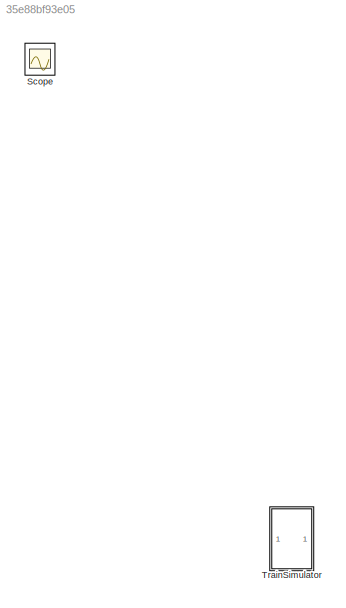
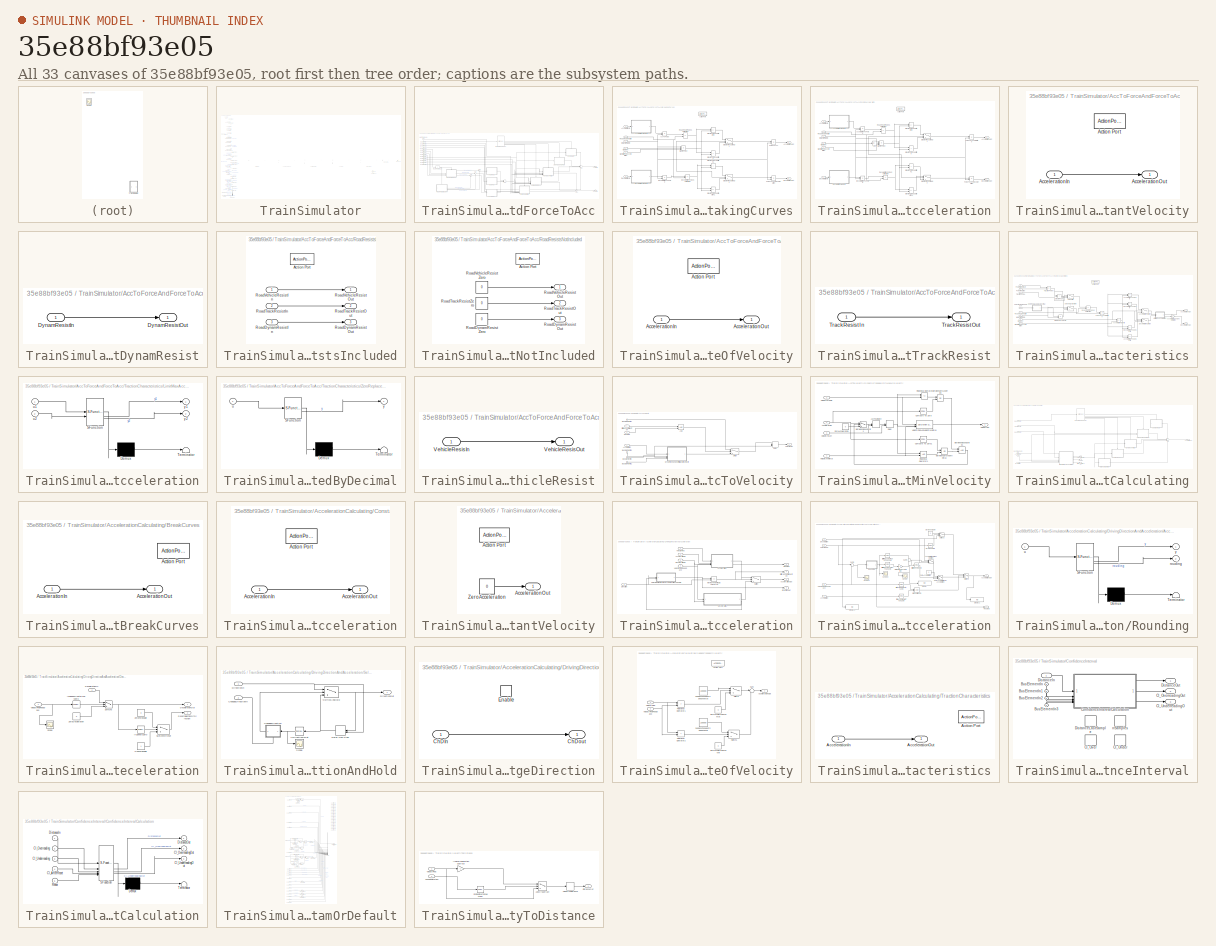
[diagram: thumbnail index - all 33 canvases of the model, root first then tree order]
MODEL slx_35e88bf93e05
KIND model
BLOCK [Scope] Scope
  Floating = off
  IOType = viewer
  NumInputPorts = 1
  ScopeSpecificationString = Simulink.scopes.TimeScopeBlockCfg('CurrentConfiguration', extmgr.ConfigurationSet(extmgr.Configuration('Core','General UI',true),extmgr.Configuration('Core','Source UI',true),extmgr.Configuration('Sources','WiredSimulink',true,'DataLoggingVariableName','ScopeData1'),extmgr.Configuration('Visuals','Time Domain',true,'SerializedDisplays',{struct('MinYLimReal','-1.00000','MaxYLimReal','1.00000','YLab...<+1394ch>
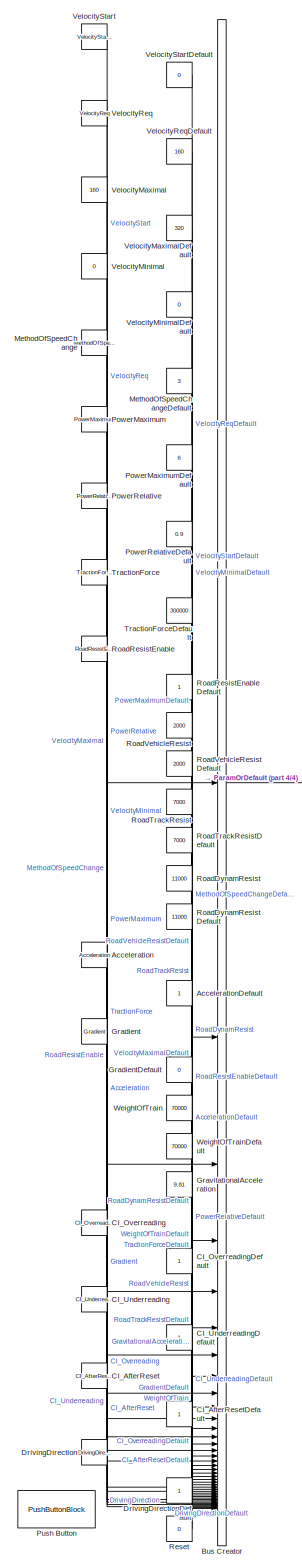
[diagram: TrainSimulator - part 1/4, left side, full height]
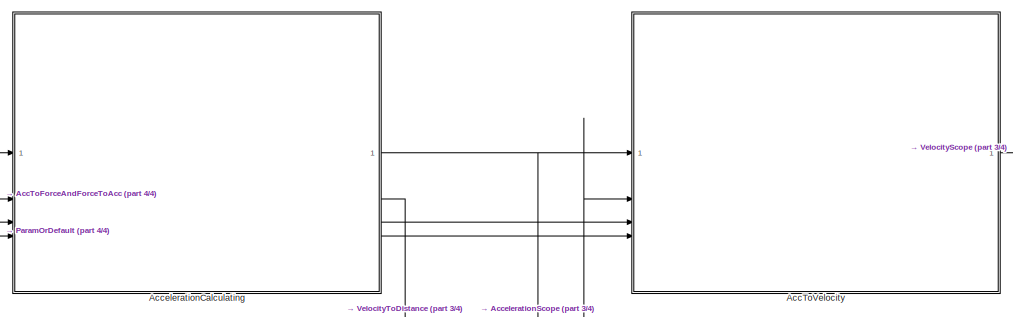
[diagram: TrainSimulator - part 2/4, central region]
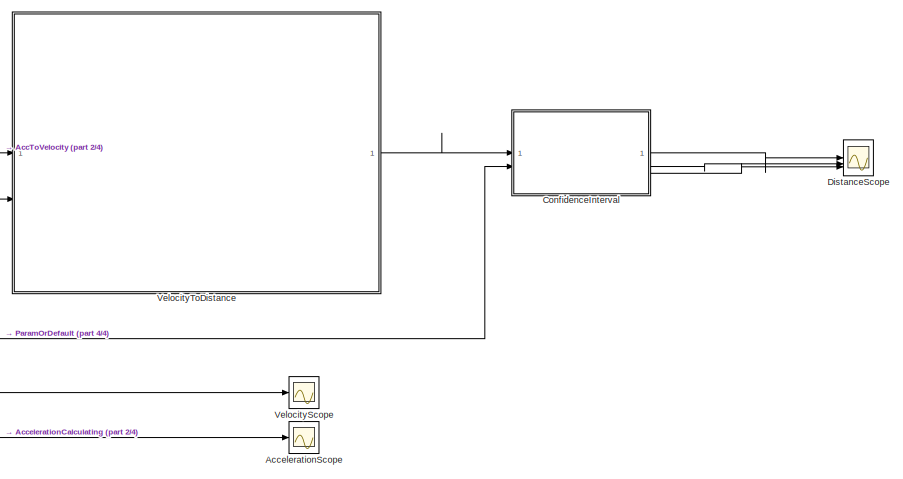
[diagram: TrainSimulator - part 3/4, middle right region]
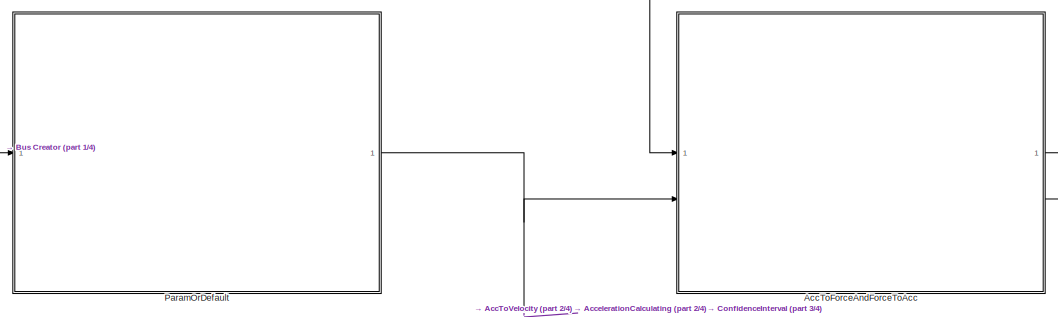
[diagram: TrainSimulator - part 4/4, middle left region]
BLOCK [SubSystem] TrainSimulator
BLOCK [SubSystem] TrainSimulator/AccToForceAndForceToAcc
BLOCK [Outport] TrainSimulator/AccToForceAndForceToAcc/Acceleration
  OutDataTypeStr = double
BLOCK [Sum] TrainSimulator/AccToForceAndForceToAcc/Add
  AccumDataTypeStr = double
  Inputs = +++++
  OutDataTypeStr = double
BLOCK [Sum] TrainSimulator/AccToForceAndForceToAcc/Add1
  AccumDataTypeStr = double
  IconShape = rectangular
  Inputs = +++
  OutDataTypeStr = double
  OutMin = 0
BLOCK [Sum] TrainSimulator/AccToForceAndForceToAcc/Add2
  AccumDataTypeStr = double
  Inputs = +++
  OutDataTypeStr = double
BLOCK [SubSystem] TrainSimulator/AccToForceAndForceToAcc/BreakingCurves
BLOCK [Product] TrainSimulator/AccToForceAndForceToAcc/BreakingCurves/AccToForce
  OutDataTypeStr = double
BLOCK [Inport] TrainSimulator/AccToForceAndForceToAcc/BreakingCurves/AccelerationIn
  OutDataTypeStr = double
BLOCK [SubSystem] TrainSimulator/AccToForceAndForceToAcc/BreakingCurves/AccelerationMaking
  ReferencedSubsystem = AccelerationMaking
BLOCK [Outport] TrainSimulator/AccToForceAndForceToAcc/BreakingCurves/AccelerationOut
  InitialOutput = 0
  OutDataTypeStr = double
  OutputWhenDisabled = reset
BLOCK [ActionPort] TrainSimulator/AccToForceAndForceToAcc/BreakingCurves/Action Port
  ActionPortLabel = case [ 4 ]:
BLOCK [Sum] TrainSimulator/AccToForceAndForceToAcc/BreakingCurves/DecelerationForceSubtraction
  AccumDataTypeStr = double
  IconShape = rectangular
  Inputs = +-
  OutDataTypeStr = double
  RndMeth = Round
BLOCK [Inport] TrainSimulator/AccToForceAndForceToAcc/BreakingCurves/DecelerationIn
  OutDataTypeStr = double
  Port = 4
BLOCK [SubSystem] TrainSimulator/AccToForceAndForceToAcc/BreakingCurves/DecelerationMaking
  ReferencedSubsystem = DecelerationMaking
BLOCK [Outport] TrainSimulator/AccToForceAndForceToAcc/BreakingCurves/DecelerationOut
  InitialOutput = 0
  OutDataTypeStr = double
  OutputWhenDisabled = reset
  Port = 2
BLOCK [Product] TrainSimulator/AccToForceAndForceToAcc/BreakingCurves/DecelerationToForce
  OutDataTypeStr = double
BLOCK [Product] TrainSimulator/AccToForceAndForceToAcc/BreakingCurves/ForceToAcc
  Inputs = */
  OutDataTypeStr = double
  RndMeth = Round
BLOCK [Product] TrainSimulator/AccToForceAndForceToAcc/BreakingCurves/ForceToAccDeceleration
  Inputs = */
  OutDataTypeStr = double
  RndMeth = Round
BLOCK [Inport] TrainSimulator/AccToForceAndForceToAcc/BreakingCurves/Gradient
  Port = 5
BLOCK [Switch] TrainSimulator/AccToForceAndForceToAcc/BreakingCurves/GradientPosOrNeg1
  Criteria = u2 > Threshold
  InputSameDT = off
  OutDataTypeStr = double
  SaturateOnIntegerOverflow = off
BLOCK [Switch] TrainSimulator/AccToForceAndForceToAcc/BreakingCurves/GradientPosOrNeg2
  Criteria = u2 > Threshold
  InputSameDT = off
  OutDataTypeStr = double
  SaturateOnIntegerOverflow = off
BLOCK [Inport] TrainSimulator/AccToForceAndForceToAcc/BreakingCurves/GravitationalAcceleration
  Port = 6
BLOCK [Product] TrainSimulator/AccToForceAndForceToAcc/BreakingCurves/GravityForce
  Inputs = 3
  OutDataTypeStr = double
BLOCK [Sum] TrainSimulator/AccToForceAndForceToAcc/BreakingCurves/GravityForceAddition
  AccumDataTypeStr = double
  IconShape = rectangular
  OutDataTypeStr = double
  RndMeth = Round
BLOCK [Sum] TrainSimulator/AccToForceAndForceToAcc/BreakingCurves/GravityForceAddition1
  AccumDataTypeStr = double
  IconShape = rectangular
  OutDataTypeStr = double
  RndMeth = Round
BLOCK [Sum] TrainSimulator/AccToForceAndForceToAcc/BreakingCurves/GravityForceSubtraction
  AccumDataTypeStr = double
  IconShape = rectangular
  Inputs = +-
  OutDataTypeStr = double
  RndMeth = Round
BLOCK [Sum] TrainSimulator/AccToForceAndForceToAcc/BreakingCurves/GravityForceSubtraction1
  AccumDataTypeStr = double
  IconShape = rectangular
  Inputs = +-
  OutDataTypeStr = double
  RndMeth = Round
BLOCK [Sum] TrainSimulator/AccToForceAndForceToAcc/BreakingCurves/RoadResistForceSubtraction
  AccumDataTypeStr = double
  IconShape = rectangular
  Inputs = +-
  OutDataTypeStr = double
  RndMeth = Round
BLOCK [Inport] TrainSimulator/AccToForceAndForceToAcc/BreakingCurves/RoadResistTotalIn
  OutDataTypeStr = double
  Port = 2
BLOCK [Inport] TrainSimulator/AccToForceAndForceToAcc/BreakingCurves/WeightOfTrainIn
  OutDataTypeStr = double
  Port = 3
BLOCK [Inport] TrainSimulator/AccToForceAndForceToAcc/BusElementIn
  Port = 2
BLOCK [Inport] TrainSimulator/AccToForceAndForceToAcc/BusElementIn1
  Port = 2
BLOCK [Inport] TrainSimulator/AccToForceAndForceToAcc/BusElementIn10
  Port = 2
BLOCK [Inport] TrainSimulator/AccToForceAndForceToAcc/BusElementIn11
  Port = 2
BLOCK [Inport] TrainSimulator/AccToForceAndForceToAcc/BusElementIn2
  Port = 2
BLOCK [Inport] TrainSimulator/AccToForceAndForceToAcc/BusElementIn3
  Port = 2
BLOCK [Inport] TrainSimulator/AccToForceAndForceToAcc/BusElementIn4
  Port = 2
BLOCK [Inport] TrainSimulator/AccToForceAndForceToAcc/BusElementIn5
  Port = 2
BLOCK [Inport] TrainSimulator/AccToForceAndForceToAcc/BusElementIn6
  Port = 2
BLOCK [Inport] TrainSimulator/AccToForceAndForceToAcc/BusElementIn7
  Port = 2
BLOCK [Inport] TrainSimulator/AccToForceAndForceToAcc/BusElementIn8
  Port = 2
BLOCK [Inport] TrainSimulator/AccToForceAndForceToAcc/BusElementIn9
  Port = 2
BLOCK [SubSystem] TrainSimulator/AccToForceAndForceToAcc/ConstantAcceleration
BLOCK [Abs] TrainSimulator/AccToForceAndForceToAcc/ConstantAcceleration/Abs
  OutDataTypeStr = double
  SaturateOnIntegerOverflow = off
BLOCK [Inport] TrainSimulator/AccToForceAndForceToAcc/ConstantAcceleration/AccelerationIn
  OutDataTypeStr = double
BLOCK [SubSystem] TrainSimulator/AccToForceAndForceToAcc/ConstantAcceleration/AccelerationMaking
  ReferencedSubsystem = AccelerationMaking
BLOCK [Outport] TrainSimulator/AccToForceAndForceToAcc/ConstantAcceleration/AccelerationOut
  InitialOutput = 0
  OutDataTypeStr = double
  OutputWhenDisabled = reset
BLOCK [Product] TrainSimulator/AccToForceAndForceToAcc/ConstantAcceleration/AccelerationToForce
  OutDataTypeStr = double
BLOCK [ActionPort] TrainSimulator/AccToForceAndForceToAcc/ConstantAcceleration/Action Port
  ActionPortLabel = case [ 3 ]:
BLOCK [Sum] TrainSimulator/AccToForceAndForceToAcc/ConstantAcceleration/DecelerationForceSubtraction
  AccumDataTypeStr = double
  IconShape = rectangular
  Inputs = +-
  OutDataTypeStr = double
  RndMeth = Round
BLOCK [Inport] TrainSimulator/AccToForceAndForceToAcc/ConstantAcceleration/DecelerationIn
  OutDataTypeStr = double
  Port = 4
BLOCK [SubSystem] TrainSimulator/AccToForceAndForceToAcc/ConstantAcceleration/DecelerationMaking
  ReferencedSubsystem = DecelerationMaking
BLOCK [Outport] TrainSimulator/AccToForceAndForceToAcc/ConstantAcceleration/DecelerationOut
  InitialOutput = 0
  OutDataTypeStr = double
  OutputWhenDisabled = reset
  Port = 2
BLOCK [Product] TrainSimulator/AccToForceAndForceToAcc/ConstantAcceleration/DecelerationToForce
  OutDataTypeStr = double
BLOCK [Product] TrainSimulator/AccToForceAndForceToAcc/ConstantAcceleration/ForceToAccDeceleration
  Inputs = */
  OutDataTypeStr = double
  RndMeth = Round
BLOCK [Product] TrainSimulator/AccToForceAndForceToAcc/ConstantAcceleration/ForceToAcceleratino
  Inputs = */
  OutDataTypeStr = double
  RndMeth = Round
BLOCK [Inport] TrainSimulator/AccToForceAndForceToAcc/ConstantAcceleration/Gradient
  Port = 5
BLOCK [Switch] TrainSimulator/AccToForceAndForceToAcc/ConstantAcceleration/GradientPosOrNeg1
  Criteria = u2 > Threshold
  InputSameDT = off
  OutDataTypeStr = double
  SaturateOnIntegerOverflow = off
BLOCK [Switch] TrainSimulator/AccToForceAndForceToAcc/ConstantAcceleration/GradientPosOrNeg2
  Criteria = u2 > Threshold
  InputSameDT = off
  OutDataTypeStr = double
  SaturateOnIntegerOverflow = off
BLOCK [Inport] TrainSimulator/AccToForceAndForceToAcc/ConstantAcceleration/GravitationalAcceleration
  Port = 6
BLOCK [Product] TrainSimulator/AccToForceAndForceToAcc/ConstantAcceleration/GravityForce
  Inputs = 3
  OutDataTypeStr = double
BLOCK [Sum] TrainSimulator/AccToForceAndForceToAcc/ConstantAcceleration/GravityForceAddition
  AccumDataTypeStr = double
  IconShape = rectangular
  OutDataTypeStr = double
  RndMeth = Round
BLOCK [Sum] TrainSimulator/AccToForceAndForceToAcc/ConstantAcceleration/GravityForceAddition1
  AccumDataTypeStr = double
  IconShape = rectangular
  OutDataTypeStr = double
  RndMeth = Round
BLOCK [Sum] TrainSimulator/AccToForceAndForceToAcc/ConstantAcceleration/GravityForceSubtraction
  AccumDataTypeStr = double
  IconShape = rectangular
  Inputs = +-
  OutDataTypeStr = double
  RndMeth = Round
BLOCK [Sum] TrainSimulator/AccToForceAndForceToAcc/ConstantAcceleration/GravityForceSubtraction1
  AccumDataTypeStr = double
  IconShape = rectangular
  Inputs = +-
  OutDataTypeStr = double
  RndMeth = Round
BLOCK [Sum] TrainSimulator/AccToForceAndForceToAcc/ConstantAcceleration/RoadResistForceSubtraction
  AccumDataTypeStr = double
  IconShape = rectangular
  Inputs = +-
  OutDataTypeStr = double
  RndMeth = Round
BLOCK [Inport] TrainSimulator/AccToForceAndForceToAcc/ConstantAcceleration/RoadResistTotalIn
  OutDataTypeStr = double
  Port = 2
BLOCK [Inport] TrainSimulator/AccToForceAndForceToAcc/ConstantAcceleration/WeightOfTrainIn
  OutDataTypeStr = double
  Port = 3
BLOCK [SubSystem] TrainSimulator/AccToForceAndForceToAcc/ConstantVelocity
BLOCK [Inport] TrainSimulator/AccToForceAndForceToAcc/ConstantVelocity/AccelerationIn
  OutDataTypeStr = double
BLOCK [Outport] TrainSimulator/AccToForceAndForceToAcc/ConstantVelocity/AccelerationOut
  InitialOutput = 0
  OutDataTypeStr = double
  OutputWhenDisabled = reset
BLOCK [ActionPort] TrainSimulator/AccToForceAndForceToAcc/ConstantVelocity/Action Port
  ActionPortLabel = case [ 1 ]:
BLOCK [Outport] TrainSimulator/AccToForceAndForceToAcc/Deceleration
  OutDataTypeStr = double
  Port = 2
BLOCK [SubSystem] TrainSimulator/AccToForceAndForceToAcc/DynamResist
BLOCK [Inport] TrainSimulator/AccToForceAndForceToAcc/DynamResist/DynamResistIn
  OutDataTypeStr = double
  OutMin = 0
BLOCK [Outport] TrainSimulator/AccToForceAndForceToAcc/DynamResist/DynamResistOut
  OutDataTypeStr = double
  OutMin = 0
BLOCK [If] TrainSimulator/AccToForceAndForceToAcc/IfRoadResistsEnable
  IfExpression = u1 == 1
BLOCK [SwitchCase] TrainSimulator/AccToForceAndForceToAcc/MethodOfSpeedChange
  CaseConditions = {1,2,3,4,5}
  ShowDefaultCase = off
BLOCK [SubSystem] TrainSimulator/AccToForceAndForceToAcc/RoadResistsIncluded
BLOCK [ActionPort] TrainSimulator/AccToForceAndForceToAcc/RoadResistsIncluded/Action Port
  ActionPortLabel = if(u1 == 1)
BLOCK [Inport] TrainSimulator/AccToForceAndForceToAcc/RoadResistsIncluded/RoadDynamResistIn
  OutDataTypeStr = double
  OutMin = 0
  Port = 3
BLOCK [Outport] TrainSimulator/AccToForceAndForceToAcc/RoadResistsIncluded/RoadDynamResistOut
  InitialOutput = 0
  OutDataTypeStr = double
  OutMin = 0
  OutputWhenDisabled = reset
  Port = 3
BLOCK [Inport] TrainSimulator/AccToForceAndForceToAcc/RoadResistsIncluded/RoadTrackResistIn
  OutDataTypeStr = double
  OutMin = 0
  Port = 2
BLOCK [Outport] TrainSimulator/AccToForceAndForceToAcc/RoadResistsIncluded/RoadTrackResistOut
  InitialOutput = 0
  OutDataTypeStr = double
  OutMin = 0
  OutputWhenDisabled = reset
  Port = 2
BLOCK [Inport] TrainSimulator/AccToForceAndForceToAcc/RoadResistsIncluded/RoadVehicleResistIn
  OutDataTypeStr = double
  OutMin = 0
BLOCK [Outport] TrainSimulator/AccToForceAndForceToAcc/RoadResistsIncluded/RoadVehicleResistOut
  InitialOutput = 0
  OutDataTypeStr = double
  OutMin = 0
  OutputWhenDisabled = reset
BLOCK [SubSystem] TrainSimulator/AccToForceAndForceToAcc/RoadResistsNotIncluded
BLOCK [ActionPort] TrainSimulator/AccToForceAndForceToAcc/RoadResistsNotIncluded/Action Port
  ActionPortLabel = else
BLOCK [Outport] TrainSimulator/AccToForceAndForceToAcc/RoadResistsNotIncluded/RoadDynamResistOut
  InitialOutput = 0
  OutDataTypeStr = uint8
  OutMax = 0
  OutMin = 0
  OutputWhenDisabled = reset
  Port = 3
BLOCK [Constant] TrainSimulator/AccToForceAndForceToAcc/RoadResistsNotIncluded/RoadDynamResistZero
  OutDataTypeStr = uint8
  OutMax = 0
  OutMin = 0
  Value = 0
BLOCK [Outport] TrainSimulator/AccToForceAndForceToAcc/RoadResistsNotIncluded/RoadTrackResistOut
  InitialOutput = 0
  OutDataTypeStr = uint8
  OutMax = 0
  OutMin = 0
  OutputWhenDisabled = reset
  Port = 2
BLOCK [Constant] TrainSimulator/AccToForceAndForceToAcc/RoadResistsNotIncluded/RoadTrackResistZero
  OutDataTypeStr = uint8
  OutMax = 0
  OutMin = 0
  Value = 0
BLOCK [Outport] TrainSimulator/AccToForceAndForceToAcc/RoadResistsNotIncluded/RoadVehicleResistOut
  InitialOutput = 0
  OutDataTypeStr = uint8
  OutMax = 0
  OutMin = 0
  OutputWhenDisabled = reset
BLOCK [Constant] TrainSimulator/AccToForceAndForceToAcc/RoadResistsNotIncluded/RoadVehicleResistZero
  OutDataTypeStr = uint8
  OutMax = 0
  OutMin = 0
  Value = 0
BLOCK [SubSystem] TrainSimulator/AccToForceAndForceToAcc/SuddenChangeOfVelocity
BLOCK [Inport] TrainSimulator/AccToForceAndForceToAcc/SuddenChangeOfVelocity/AccelerationIn
  OutDataTypeStr = double
BLOCK [Outport] TrainSimulator/AccToForceAndForceToAcc/SuddenChangeOfVelocity/AccelerationOut
  InitialOutput = 0
  OutDataTypeStr = double
  OutputWhenDisabled = reset
BLOCK [ActionPort] TrainSimulator/AccToForceAndForceToAcc/SuddenChangeOfVelocity/Action Port
  ActionPortLabel = case [ 2 ]:
BLOCK [Sum] TrainSimulator/AccToForceAndForceToAcc/Sum
  AccumDataTypeStr = double
  Inputs = |++
  OutMin = 0
BLOCK [Sum] TrainSimulator/AccToForceAndForceToAcc/Sum1
  AccumDataTypeStr = double
  Inputs = |++
  OutMin = 0
BLOCK [Sum] TrainSimulator/AccToForceAndForceToAcc/Sum2
  AccumDataTypeStr = double
  Inputs = |++
  OutMin = 0
BLOCK [SubSystem] TrainSimulator/AccToForceAndForceToAcc/TrackResist
BLOCK [Inport] TrainSimulator/AccToForceAndForceToAcc/TrackResist/TrackResistIn
  OutDataTypeStr = double
  OutMin = 0
BLOCK [Outport] TrainSimulator/AccToForceAndForceToAcc/TrackResist/TrackResistOut
  OutDataTypeStr = double
  OutMin = 0
BLOCK [SubSystem] TrainSimulator/AccToForceAndForceToAcc/TractionCharacteristics
BLOCK [Product] TrainSimulator/AccToForceAndForceToAcc/TractionCharacteristics/AccelerationGravity
  OutDataTypeStr = double
BLOCK [Outport] TrainSimulator/AccToForceAndForceToAcc/TractionCharacteristics/AccelerationOut
  InitialOutput = 0
  OutDataTypeStr = double
  OutputWhenDisabled = reset
BLOCK [Switch] TrainSimulator/AccToForceAndForceToAcc/TractionCharacteristics/AccelerationSwitch
  Criteria = u2 > Threshold
  InputSameDT = off
  SaturateOnIntegerOverflow = off
BLOCK [Gain] TrainSimulator/AccToForceAndForceToAcc/TractionCharacteristics/AccelerationToDeceleration
  Gain = -1
  ParamDataTypeStr = double
BLOCK [Sum] TrainSimulator/AccToForceAndForceToAcc/TractionCharacteristics/AccelerationToDownHill
  IconShape = rectangular
  Inputs = +-
BLOCK [Sum] TrainSimulator/AccToForceAndForceToAcc/TractionCharacteristics/AccelerationToUpHill
  IconShape = rectangular
  Inputs = +-
BLOCK [ActionPort] TrainSimulator/AccToForceAndForceToAcc/TractionCharacteristics/Action Port
  ActionPortLabel = case [ 5 ]:
BLOCK [Outport] TrainSimulator/AccToForceAndForceToAcc/TractionCharacteristics/DecelerationOut
  InitialOutput = 0
  OutDataTypeStr = double
  OutputWhenDisabled = reset
  Port = 2
BLOCK [Switch] TrainSimulator/AccToForceAndForceToAcc/TractionCharacteristics/DecelerationSwitch
  Criteria = u2 > Threshold
  InputSameDT = off
  SaturateOnIntegerOverflow = off
BLOCK [Sum] TrainSimulator/AccToForceAndForceToAcc/TractionCharacteristics/DecelerationToDownHill
  IconShape = rectangular
BLOCK [Sum] TrainSimulator/AccToForceAndForceToAcc/TractionCharacteristics/DecelerationToUpHill
  IconShape = rectangular
BLOCK [Product] TrainSimulator/AccToForceAndForceToAcc/TractionCharacteristics/DivisionByVelocity
BLOCK [Product] TrainSimulator/AccToForceAndForceToAcc/TractionCharacteristics/ForceToAcceleration
  Inputs = */
  OutDataTypeStr = double
BLOCK [Inport] TrainSimulator/AccToForceAndForceToAcc/TractionCharacteristics/Gradient
  Port = 6
BLOCK [Inport] TrainSimulator/AccToForceAndForceToAcc/TractionCharacteristics/GravitationalAcceleration
  Port = 7
BLOCK [RelationalOperator] TrainSimulator/AccToForceAndForceToAcc/TractionCharacteristics/GreaterThan
  InputSameDT = off
  Operator = >
  OutDataTypeStr = boolean
  RndMeth = Simplest
BLOCK [SubSystem] TrainSimulator/AccToForceAndForceToAcc/TractionCharacteristics/LimitMaxAcceleration
  ErrorFcn = Stateflow.Translate.translate
  PermitHierarchicalResolution = ExplicitOnly
  SFBlockType = MATLAB Function
  TreatAsAtomicUnit = on
BLOCK [Demux] TrainSimulator/AccToForceAndForceToAcc/TractionCharacteristics/LimitMaxAcceleration/ Demux 
  Outputs = 1
BLOCK [S-Function] TrainSimulator/AccToForceAndForceToAcc/TractionCharacteristics/LimitMaxAcceleration/ SFunction 
  EnableBusSupport = on
  FunctionName = sf_sfun
  PortCounts = [2 3]
  SFcnIsStateOwnerBlock = off
  SFunctionDeploymentMode = off
  Tag = Stateflow S-Function 3
BLOCK [Terminator] TrainSimulator/AccToForceAndForceToAcc/TractionCharacteristics/LimitMaxAcceleration/ Terminator 
BLOCK [Inport] TrainSimulator/AccToForceAndForceToAcc/TractionCharacteristics/LimitMaxAcceleration/u1
BLOCK [Inport] TrainSimulator/AccToForceAndForceToAcc/TractionCharacteristics/LimitMaxAcceleration/u2
  Port = 2
BLOCK [Outport] TrainSimulator/AccToForceAndForceToAcc/TractionCharacteristics/LimitMaxAcceleration/y1
BLOCK [Outport] TrainSimulator/AccToForceAndForceToAcc/TractionCharacteristics/LimitMaxAcceleration/y2
  Port = 2
BLOCK [Inport] TrainSimulator/AccToForceAndForceToAcc/TractionCharacteristics/PowerMaximum
  OutDataTypeStr = double
BLOCK [Inport] TrainSimulator/AccToForceAndForceToAcc/TractionCharacteristics/PowerRelative
  OutDataTypeStr = double
  Port = 2
BLOCK [Sum] TrainSimulator/AccToForceAndForceToAcc/TractionCharacteristics/RoadResistForceSubtraction
  IconShape = rectangular
  Inputs = +-
BLOCK [Inport] TrainSimulator/AccToForceAndForceToAcc/TractionCharacteristics/RoadResistTotalIn
  OutDataTypeStr = double
  Port = 4
BLOCK [Switch] TrainSimulator/AccToForceAndForceToAcc/TractionCharacteristics/SelectMin
  Criteria = u2 > Threshold
  InputSameDT = off
  OutDataTypeStr = double
  SaturateOnIntegerOverflow = off
BLOCK [Switch] TrainSimulator/AccToForceAndForceToAcc/TractionCharacteristics/SelectVelocityOrNot
  Criteria = u2 > Threshold
  InputSameDT = off
  OutDataTypeStr = double
  SaturateOnIntegerOverflow = off
BLOCK [Inport] TrainSimulator/AccToForceAndForceToAcc/TractionCharacteristics/TractionForce
  OutDataTypeStr = double
  Port = 3
BLOCK [Product] TrainSimulator/AccToForceAndForceToAcc/TractionCharacteristics/TractionPower
  OutDataTypeStr = double
BLOCK [Inport] TrainSimulator/AccToForceAndForceToAcc/TractionCharacteristics/VelocityFinalFeedback
  Port = 8
BLOCK [Inport] TrainSimulator/AccToForceAndForceToAcc/TractionCharacteristics/WeightOfTrainIn
  OutDataTypeStr = double
  Port = 5
BLOCK [SubSystem] TrainSimulator/AccToForceAndForceToAcc/TractionCharacteristics/ZeroReplacedByDecimal
  ErrorFcn = Stateflow.Translate.translate
  PermitHierarchicalResolution = ExplicitOnly
  SFBlockType = MATLAB Function
  TreatAsAtomicUnit = on
BLOCK [Demux] TrainSimulator/AccToForceAndForceToAcc/TractionCharacteristics/ZeroReplacedByDecimal/ Demux 
  Outputs = 1
BLOCK [S-Function] TrainSimulator/AccToForceAndForceToAcc/TractionCharacteristics/ZeroReplacedByDecimal/ SFunction 
  EnableBusSupport = on
  FunctionName = sf_sfun
  PortCounts = [1 2]
  SFcnIsStateOwnerBlock = off
  SFunctionDeploymentMode = off
  Tag = Stateflow S-Function 2
BLOCK [Terminator] TrainSimulator/AccToForceAndForceToAcc/TractionCharacteristics/ZeroReplacedByDecimal/ Terminator 
BLOCK [Inport] TrainSimulator/AccToForceAndForceToAcc/TractionCharacteristics/ZeroReplacedByDecimal/u
BLOCK [Outport] TrainSimulator/AccToForceAndForceToAcc/TractionCharacteristics/ZeroReplacedByDecimal/y
BLOCK [SubSystem] TrainSimulator/AccToForceAndForceToAcc/VehicleResist
BLOCK [Inport] TrainSimulator/AccToForceAndForceToAcc/VehicleResist/VehicleResisIn
  OutDataTypeStr = double
  OutMin = 0
BLOCK [Outport] TrainSimulator/AccToForceAndForceToAcc/VehicleResist/VehicleResisOut
  OutDataTypeStr = double
  OutMin = 0
BLOCK [Inport] TrainSimulator/AccToForceAndForceToAcc/VelocityFinalFeedback
BLOCK [SubSystem] TrainSimulator/AccToVelocity
BLOCK [Logic] TrainSimulator/AccToVelocity/AND
  AllPortsSameDT = off
  OutDataTypeStr = boolean
BLOCK [Inport] TrainSimulator/AccToVelocity/Acceleration
  OutDataTypeStr = double
BLOCK [Inport] TrainSimulator/AccToVelocity/BusElementIn
  Port = 2
BLOCK [Inport] TrainSimulator/AccToVelocity/BusElementIn1
  Port = 2
BLOCK [Inport] TrainSimulator/AccToVelocity/BusElementIn2
  Port = 2
BLOCK [Inport] TrainSimulator/AccToVelocity/BusElementIn3
  Port = 2
BLOCK [Delay] TrainSimulator/AccToVelocity/Delay
  DelayLength = 1
  InitialCondition = 20
  InitialConditionSource = Input port
  InputPortMap = u0,p4
BLOCK [Inport] TrainSimulator/AccToVelocity/DifferenceOfDirection
  OutDataTypeStr = boolean
  Port = 4
BLOCK [SubSystem] TrainSimulator/AccToVelocity/DynamicChangeLimitMaxMinVelocity
BLOCK [DiscreteIntegrator] TrainSimulator/AccToVelocity/DynamicChangeLimitMaxMinVelocity/AccToVelocity
  ICPrevOutput = DiscIntNeverNeededParam
  ICPrevScaledInput = DiscIntNeverNeededParam
  InitialConditionSetting = Auto
  InitialConditionSource = external
  IntegratorMethod = Integration: Trapezoidal
  LowerSaturationLimit = 0
  OutDataTypeStr = double
  SampleTime = -1
  UpperSaturationLimit = 50
BLOCK [Inport] TrainSimulator/AccToVelocity/DynamicChangeLimitMaxMinVelocity/Acceleration
  OutDataTypeStr = double
BLOCK [Switch] TrainSimulator/AccToVelocity/DynamicChangeLimitMaxMinVelocity/BetweenBoundaries
  Criteria = u2 > Threshold
  InputSameDT = off
  OutDataTypeStr = double
  SaturateOnIntegerOverflow = off
BLOCK [Logic] TrainSimulator/AccToVelocity/DynamicChangeLimitMaxMinVelocity/BetweenBoundarioes
  AllPortsSameDT = off
  OutDataTypeStr = boolean
BLOCK [Logic] TrainSimulator/AccToVelocity/DynamicChangeLimitMaxMinVelocity/BetweenZeroAndMinimal
  AllPortsSameDT = off
  Operator = OR
  OutDataTypeStr = boolean
BLOCK [Logic] TrainSimulator/AccToVelocity/DynamicChangeLimitMaxMinVelocity/BetweenZeroAndReq
  AllPortsSameDT = off
  Operator = OR
  OutDataTypeStr = boolean
BLOCK [Reference] TrainSimulator/AccToVelocity/DynamicChangeLimitMaxMinVelocity/Compare To Zero  REF=simulink/Logic and Bit
Operations/Compare
To Zero
  SourceBlock = simulink/Logic and Bit\nOperations/Compare\nTo Zero
  SourceType = Compare To Zero
BLOCK [Reference] TrainSimulator/AccToVelocity/DynamicChangeLimitMaxMinVelocity/Compare To Zero1  REF=simulink/Logic and Bit
Operations/Compare
To Zero
  SourceBlock = simulink/Logic and Bit\nOperations/Compare\nTo Zero
  SourceType = Compare To Zero
BLOCK [Delay] TrainSimulator/AccToVelocity/DynamicChangeLimitMaxMinVelocity/Delay
  DelayLength = 1
  InitialConditionSource = Input port
  InputPortMap = u0,p4
BLOCK [RelationalOperator] TrainSimulator/AccToVelocity/DynamicChangeLimitMaxMinVelocity/Relational Operator
  InputSameDT = off
  Operator = <=
  OutDataTypeStr = boolean
BLOCK [RelationalOperator] TrainSimulator/AccToVelocity/DynamicChangeLimitMaxMinVelocity/Relational Operator1
  InputSameDT = off
  OutDataTypeStr = boolean
BLOCK [Inport] TrainSimulator/AccToVelocity/DynamicChangeLimitMaxMinVelocity/VelocityMaxial
  OutDataTypeStr = double
  Port = 2
BLOCK [Inport] TrainSimulator/AccToVelocity/DynamicChangeLimitMaxMinVelocity/VelocityMinimal
  OutDataTypeStr = double
  Port = 4
BLOCK [Outport] TrainSimulator/AccToVelocity/DynamicChangeLimitMaxMinVelocity/VelocityOut
  OutDataTypeStr = double
BLOCK [Reference] TrainSimulator/AccToVelocity/DynamicChangeLimitMaxMinVelocity/VelocityReqAndVelocityMinimal  REF=simulink/Discontinuities/Saturation
Dynamic
  SourceBlock = simulink/Discontinuities/Saturation\nDynamic
  SourceType = Saturation Dynamic
BLOCK [Inport] TrainSimulator/AccToVelocity/DynamicChangeLimitMaxMinVelocity/VelocityStart
  OutDataTypeStr = double
  Port = 3
BLOCK [Constant] TrainSimulator/AccToVelocity/DynamicChangeLimitMaxMinVelocity/ZeroAcceleration
  OutDataTypeStr = uint8
  Value = 0
BLOCK [Inport] TrainSimulator/AccToVelocity/Rouding
  Port = 3
BLOCK [Switch] TrainSimulator/AccToVelocity/Switch
  Criteria = u2 > Threshold
  InputSameDT = off
  SaturateOnIntegerOverflow = off
BLOCK [Outport] TrainSimulator/AccToVelocity/VelocityOut
  OutDataTypeStr = double
BLOCK [Constant] TrainSimulator/Acceleration
  OutDataTypeStr = double
  Value = Acceleration
  VectorParams1D = off
BLOCK [SubSystem] TrainSimulator/AccelerationCalculating
BLOCK [Inport] TrainSimulator/AccelerationCalculating/AccelerationIn
  OutDataTypeStr = double
  Port = 2
BLOCK [Outport] TrainSimulator/AccelerationCalculating/AccelerationOut
  OutDataTypeStr = double
BLOCK [Sum] TrainSimulator/AccelerationCalculating/Add
  AccumDataTypeStr = double
  Inputs = +++++
  OutDataTypeStr = double
BLOCK [SubSystem] TrainSimulator/AccelerationCalculating/BreakCurves
BLOCK [Inport] TrainSimulator/AccelerationCalculating/BreakCurves/AccelerationIn
  OutDataTypeStr = double
BLOCK [Outport] TrainSimulator/AccelerationCalculating/BreakCurves/AccelerationOut
  InitialOutput = 0
  OutDataTypeStr = double
BLOCK [ActionPort] TrainSimulator/AccelerationCalculating/BreakCurves/Action Port
  ActionPortLabel = case [ 4 ]:
BLOCK [Inport] TrainSimulator/AccelerationCalculating/BusElementIn
  Port = 4
BLOCK [Inport] TrainSimulator/AccelerationCalculating/BusElementIn1
  Port = 4
BLOCK [Inport] TrainSimulator/AccelerationCalculating/BusElementIn2
  Port = 4
BLOCK [Outport] TrainSimulator/AccelerationCalculating/ChangeDirection
  OutDataTypeStr = uint8
  Port = 2
BLOCK [SubSystem] TrainSimulator/AccelerationCalculating/ConstantAcceleration
BLOCK [Inport] TrainSimulator/AccelerationCalculating/ConstantAcceleration/AccelerationIn
  OutDataTypeStr = double
BLOCK [Outport] TrainSimulator/AccelerationCalculating/ConstantAcceleration/AccelerationOut
  InitialOutput = 0
  OutDataTypeStr = double
BLOCK [ActionPort] TrainSimulator/AccelerationCalculating/ConstantAcceleration/Action Port
  ActionPortLabel = case [ 3 ]:
BLOCK [SubSystem] TrainSimulator/AccelerationCalculating/ConstantVelocity
BLOCK [Outport] TrainSimulator/AccelerationCalculating/ConstantVelocity/AccelerationOut
  InitialOutput = 0
  OutDataTypeStr = double
BLOCK [ActionPort] TrainSimulator/AccelerationCalculating/ConstantVelocity/Action Port
  ActionPortLabel = case [ 1 ]:
BLOCK [Constant] TrainSimulator/AccelerationCalculating/ConstantVelocity/ZeroAcceleration
  OutDataTypeStr = double
  OutMax = 0
  OutMin = 0
  Value = 0
BLOCK [Inport] TrainSimulator/AccelerationCalculating/Deceleration
  OutDataTypeStr = double
  Port = 3
BLOCK [Outport] TrainSimulator/AccelerationCalculating/DifferenceOfDirection
  OutDataTypeStr = boolean
  Port = 4
BLOCK [SubSystem] TrainSimulator/AccelerationCalculating/DrivingDirectionAndAcceleration
BLOCK [SubSystem] TrainSimulator/AccelerationCalculating/DrivingDirectionAndAcceleration/Acceleration
BLOCK [Inport] TrainSimulator/AccelerationCalculating/DrivingDirectionAndAcceleration/Acceleration/Acceleration
  OutDataTypeStr = double
  Port = 2
BLOCK [Switch] TrainSimulator/AccelerationCalculating/DrivingDirectionAndAcceleration/Acceleration/AccelerationOrDeceleration
  Criteria = u2 > Threshold
  InputSameDT = off
  OutDataTypeStr = double
  SaturateOnIntegerOverflow = off
BLOCK [Outport] TrainSimulator/AccelerationCalculating/DrivingDirectionAndAcceleration/Acceleration/AccelerationOut
  InitialOutput = 0
  OutDataTypeStr = double
  OutputWhenDisabled = reset
BLOCK [Inport] TrainSimulator/AccelerationCalculating/DrivingDirectionAndAcceleration/Acceleration/Deceleration
  OutDataTypeStr = double
  Port = 3
BLOCK [Display] TrainSimulator/AccelerationCalculating/DrivingDirectionAndAcceleration/Acceleration/Display
  Decimation = 1
BLOCK [Display] TrainSimulator/AccelerationCalculating/DrivingDirectionAndAcceleration/Acceleration/Display1
  Decimation = 1
BLOCK [Display] TrainSimulator/AccelerationCalculating/DrivingDirectionAndAcceleration/Acceleration/Display3
  Decimation = 1
BLOCK [Gain] TrainSimulator/AccelerationCalculating/DrivingDirectionAndAcceleration/Acceleration/DistinctionDeceleration
  Gain = -1
  OutDataTypeStr = int8
  ParamDataTypeStr = double
BLOCK [Reference] TrainSimulator/AccelerationCalculating/DrivingDirectionAndAcceleration/Acceleration/IfDifferenceIsGreaterThanZero  REF=simulink/Logic and Bit
Operations/Compare
To Zero
  LibrarySourceBlock = simulink/Quick Insert/Logic and Bit\nOperations/IsZero
  SourceBlock = simulink/Logic and Bit\nOperations/Compare\nTo Zero
  SourceType = Compare To Zero
BLOCK [Reference] TrainSimulator/AccelerationCalculating/DrivingDirectionAndAcceleration/Acceleration/IfDifferenceIsLowerThanZero  REF=simulink/Logic and Bit
Operations/Compare
To Zero
  LibrarySourceBlock = simulink/Quick Insert/Logic and Bit\nOperations/IsZero
  SourceBlock = simulink/Logic and Bit\nOperations/Compare\nTo Zero
  SourceType = Compare To Zero
BLOCK [Reference] TrainSimulator/AccelerationCalculating/DrivingDirectionAndAcceleration/Acceleration/IfDifferenceIsZero  REF=simulink/Logic and Bit
Operations/Compare
To Zero
  LibrarySourceBlock = simulink/Quick Insert/Logic and Bit\nOperations/IsZero
  SourceBlock = simulink/Logic and Bit\nOperations/Compare\nTo Zero
  SourceType = Compare To Zero
BLOCK [Reference] TrainSimulator/AccelerationCalculating/DrivingDirectionAndAcceleration/Acceleration/IfInitAccIsGreaterThanZero  REF=simulink/Logic and Bit
Operations/Compare
To Zero
  LibrarySourceBlock = simulink/Quick Insert/Logic and Bit\nOperations/IsZero
  SourceBlock = simulink/Logic and Bit\nOperations/Compare\nTo Zero
  SourceType = Compare To Zero
BLOCK [Reference] TrainSimulator/AccelerationCalculating/DrivingDirectionAndAcceleration/Acceleration/IfInitActualVelocityIsZero  REF=simulink/Logic and Bit
Operations/Compare
To Zero
  LibrarySourceBlock = simulink/Quick Insert/Logic and Bit\nOperations/IsZero
  SourceBlock = simulink/Logic and Bit\nOperations/Compare\nTo Zero
  SourceType = Compare To Zero
BLOCK [Logic] TrainSimulator/AccelerationCalculating/DrivingDirectionAndAcceleration/Acceleration/InitConditionFix
  AllPortsSameDT = off
  OutDataTypeStr = boolean
BLOCK [Reference] TrainSimulator/AccelerationCalculating/DrivingDirectionAndAcceleration/Acceleration/OvershootFix  REF=simulink/Logic and Bit
Operations/Compare
To Zero
  LibrarySourceBlock = simulink/Quick Insert/Logic and Bit\nOperations/IsZero
  SourceBlock = simulink/Logic and Bit\nOperations/Compare\nTo Zero
  SourceType = Compare To Zero
BLOCK [Constant] TrainSimulator/AccelerationCalculating/DrivingDirectionAndAcceleration/Acceleration/OvershootZero
  OutDataTypeStr = int8
  Value = 0
BLOCK [Outport] TrainSimulator/AccelerationCalculating/DrivingDirectionAndAcceleration/Acceleration/Rouding
  OutDataTypeStr = double
  Port = 2
BLOCK [SubSystem] TrainSimulator/AccelerationCalculating/DrivingDirectionAndAcceleration/Acceleration/Rounding
  ErrorFcn = Stateflow.Translate.translate
  LibrarySourceBlock = simulink/User-Defined\nFunctions/MATLAB Function
  PermitHierarchicalResolution = ExplicitOnly
  SFBlockType = MATLAB Function
  TreatAsAtomicUnit = on
BLOCK [Demux] TrainSimulator/AccelerationCalculating/DrivingDirectionAndAcceleration/Acceleration/Rounding/ Demux 
  Outputs = 1
BLOCK [S-Function] TrainSimulator/AccelerationCalculating/DrivingDirectionAndAcceleration/Acceleration/Rounding/ SFunction 
  EnableBusSupport = on
  FunctionName = sf_sfun
  PortCounts = [1 3]
  SFcnIsStateOwnerBlock = off
  SFunctionDeploymentMode = off
  Tag = Stateflow S-Function 1
BLOCK [Terminator] TrainSimulator/AccelerationCalculating/DrivingDirectionAndAcceleration/Acceleration/Rounding/ Terminator 
BLOCK [Outport] TrainSimulator/AccelerationCalculating/DrivingDirectionAndAcceleration/Acceleration/Rounding/rouding
  Port = 2
BLOCK [Inport] TrainSimulator/AccelerationCalculating/DrivingDirectionAndAcceleration/Acceleration/Rounding/u
BLOCK [Outport] TrainSimulator/AccelerationCalculating/DrivingDirectionAndAcceleration/Acceleration/Rounding/y
BLOCK [Scope] TrainSimulator/AccelerationCalculating/DrivingDirectionAndAcceleration/Acceleration/Scope
  Floating = off
  NumInputPorts = 1
  ScopeSpecificationString = Simulink.scopes.TimeScopeBlockCfg('CurrentConfiguration', extmgr.ConfigurationSet(extmgr.Configuration('Core','General UI',true),extmgr.Configuration('Core','Source UI',true),extmgr.Configuration('Sources','WiredSimulink',true,'DataLoggingVariableName','ScopeData1'),extmgr.Configuration('Visuals','Time Domain',true,'SerializedDisplays',{struct('MinYLimReal','-0.125','MaxYLimReal','1.125','YLabelRe...<+1424ch>
BLOCK [Scope] TrainSimulator/AccelerationCalculating/DrivingDirectionAndAcceleration/Acceleration/Scope1
  Floating = off
  NumInputPorts = 1
  ScopeSpecificationString = Simulink.scopes.TimeScopeBlockCfg('CurrentConfiguration', extmgr.ConfigurationSet(extmgr.Configuration('Core','General UI',true),extmgr.Configuration('Core','Source UI',true),extmgr.Configuration('Sources','WiredSimulink',true,'DataLoggingVariableName','ScopeData2'),extmgr.Configuration('Visuals','Time Domain',true,'SerializedDisplays',{struct('MinYLimReal','-0.00164','MaxYLimReal','0.00261','YLab...<+1436ch>
BLOCK [Scope] TrainSimulator/AccelerationCalculating/DrivingDirectionAndAcceleration/Acceleration/Scope2
  Floating = off
  NumInputPorts = 1
  ScopeSpecificationString = Simulink.scopes.TimeScopeBlockCfg('CurrentConfiguration', extmgr.ConfigurationSet(extmgr.Configuration('Core','General UI',true),extmgr.Configuration('Core','Source UI',true),extmgr.Configuration('Sources','WiredSimulink',true,'DataLoggingVariableName','ScopeData3'),extmgr.Configuration('Visuals','Time Domain',true,'SerializedDisplays',{struct('MinYLimReal','-0.18426','MaxYLimReal','0.20934','YLab...<+1443ch>
BLOCK [Sum] TrainSimulator/AccelerationCalculating/DrivingDirectionAndAcceleration/Acceleration/Sum2
  AccumDataTypeStr = double
  Inputs = |+-
  OutDataTypeStr = double
BLOCK [Sum] TrainSimulator/AccelerationCalculating/DrivingDirectionAndAcceleration/Acceleration/Sum4
  AccumDataTypeStr = int8
  OutDataTypeStr = double
  RndMeth = Round
BLOCK [Switch] TrainSimulator/AccelerationCalculating/DrivingDirectionAndAcceleration/Acceleration/Switch3
  Criteria = u2 > Threshold
  InputSameDT = off
  OutDataTypeStr = double
  SaturateOnIntegerOverflow = off
BLOCK [Switch] TrainSimulator/AccelerationCalculating/DrivingDirectionAndAcceleration/Acceleration/Switch9
  Criteria = u2 > Threshold
  InputSameDT = off
  OutDataTypeStr = double
  SaturateOnIntegerOverflow = off
BLOCK [Inport] TrainSimulator/AccelerationCalculating/DrivingDirectionAndAcceleration/Acceleration/VelocityFinalFeedback
  OutDataTypeStr = double
  Port = 4
BLOCK [Inport] TrainSimulator/AccelerationCalculating/DrivingDirectionAndAcceleration/Acceleration/VelocityReq
  OutDataTypeStr = double
BLOCK [Constant] TrainSimulator/AccelerationCalculating/DrivingDirectionAndAcceleration/Acceleration/ZeroAcceleration
  OutDataTypeStr = uint8
  Value = 0
BLOCK [Switch] TrainSimulator/AccelerationCalculating/DrivingDirectionAndAcceleration/Acceleration/ZeroAccelerationOrAcceleration
  Criteria = u2 > Threshold
  InputSameDT = off
  OutDataTypeStr = double
  SaturateOnIntegerOverflow = off
BLOCK [Inport] TrainSimulator/AccelerationCalculating/DrivingDirectionAndAcceleration/AccelerationIn
  OutDataTypeStr = double
  Port = 2
BLOCK [Outport] TrainSimulator/AccelerationCalculating/DrivingDirectionAndAcceleration/AccelerationOut
  InitialOutput = 0
  OutDataTypeStr = double
  OutputWhenDisabled = reset
BLOCK [SubSystem] TrainSimulator/AccelerationCalculating/DrivingDirectionAndAcceleration/Deceleration
BLOCK [Inport] TrainSimulator/AccelerationCalculating/DrivingDirectionAndAcceleration/Deceleration/DecelerationIn
  OutDataTypeStr = double
  Port = 2
BLOCK [Outport] TrainSimulator/AccelerationCalculating/DrivingDirectionAndAcceleration/Deceleration/DecelerationOut
  OutDataTypeStr = double
BLOCK [Reference] TrainSimulator/AccelerationCalculating/DrivingDirectionAndAcceleration/Deceleration/IfSpeedIsZero  REF=simulink/Logic and Bit
Operations/Compare
To Constant
  SourceBlock = simulink/Logic and Bit\nOperations/Compare\nTo Constant
  SourceType = Compare To Constant
BLOCK [Reference] TrainSimulator/AccelerationCalculating/DrivingDirectionAndAcceleration/Deceleration/IsSpeedGreaterThanZero  REF=simulink/Logic and Bit
Operations/Compare
To Zero
  LibrarySourceBlock = simulink/Quick Insert/Logic and Bit\nOperations/IsZero
  SourceBlock = simulink/Logic and Bit\nOperations/Compare\nTo Zero
  SourceType = Compare To Zero
BLOCK [Constant] TrainSimulator/AccelerationCalculating/DrivingDirectionAndAcceleration/Deceleration/OneForEnable
  OutDataTypeStr = uint8
BLOCK [Outport] TrainSimulator/AccelerationCalculating/DrivingDirectionAndAcceleration/Deceleration/ResetSelectionOfDirection
  OutDataTypeStr = uint8
  Port = 2
BLOCK [Scope] TrainSimulator/AccelerationCalculating/DrivingDirectionAndAcceleration/Deceleration/Scope
  Floating = off
  NumInputPorts = 1
  ScopeSpecificationString = Simulink.scopes.TimeScopeBlockCfg('CurrentConfiguration', extmgr.ConfigurationSet(extmgr.Configuration('Core','General UI',true),extmgr.Configuration('Core','Source UI',true),extmgr.Configuration('Sources','WiredSimulink',true,'DataLoggingVariableName','ScopeData5'),extmgr.Configuration('Visuals','Time Domain',true,'SerializedDisplays',{struct('MinYLimReal','59.94156','MaxYLimReal','59.94195','YLa...<+1434ch>
BLOCK [Switch] TrainSimulator/AccelerationCalculating/DrivingDirectionAndAcceleration/Deceleration/Switch5
  Criteria = u2 > Threshold
  InputSameDT = off
  OutDataTypeStr = double
  SaturateOnIntegerOverflow = off
BLOCK [Switch] TrainSimulator/AccelerationCalculating/DrivingDirectionAndAcceleration/Deceleration/SwitchForReset
  Criteria = u2 > Threshold
  InputSameDT = off
  OutDataTypeStr = uint8
  SaturateOnIntegerOverflow = off
BLOCK [Inport] TrainSimulator/AccelerationCalculating/DrivingDirectionAndAcceleration/Deceleration/VelocityFinalFeedback
  OutDataTypeStr = double
BLOCK [Constant] TrainSimulator/AccelerationCalculating/DrivingDirectionAndAcceleration/Deceleration/ZeroDeceleration
  OutDataTypeStr = uint8
  Value = 0
BLOCK [Constant] TrainSimulator/AccelerationCalculating/DrivingDirectionAndAcceleration/Deceleration/ZeroForEnable
  OutDataTypeStr = uint8
  Value = 0
BLOCK [Inport] TrainSimulator/AccelerationCalculating/DrivingDirectionAndAcceleration/DecelerationIn
  OutDataTypeStr = double
  Port = 5
BLOCK [Outport] TrainSimulator/AccelerationCalculating/DrivingDirectionAndAcceleration/DifferenceOfDirection
  OutDataTypeStr = boolean
  Port = 4
BLOCK [Inport] TrainSimulator/AccelerationCalculating/DrivingDirectionAndAcceleration/Direction
  OutDataTypeStr = uint8
BLOCK [Outport] TrainSimulator/AccelerationCalculating/DrivingDirectionAndAcceleration/DirectionOut
  InitialOutput = 0
  OutDataTypeStr = uint8
  OutputWhenDisabled = reset
  Port = 2
BLOCK [RelationalOperator] TrainSimulator/AccelerationCalculating/DrivingDirectionAndAcceleration/MovingToNominalOrReverse
  InputSameDT = off
  Operator = ==
  OutDataTypeStr = boolean
  RndMeth = Simplest
BLOCK [Outport] TrainSimulator/AccelerationCalculating/DrivingDirectionAndAcceleration/Rouding
  OutDataTypeStr = double
  Port = 3
BLOCK [SubSystem] TrainSimulator/AccelerationCalculating/DrivingDirectionAndAcceleration/SelectNominalOrReverseDirectionAndHold
BLOCK [SubSystem] TrainSimulator/AccelerationCalculating/DrivingDirectionAndAcceleration/SelectNominalOrReverseDirectionAndHold/ChangeDirection
  NameLocation = top
  TreatAsAtomicUnit = on
BLOCK [Inport] TrainSimulator/AccelerationCalculating/DrivingDirectionAndAcceleration/SelectNominalOrReverseDirectionAndHold/ChangeDirection/ChDIn
  OutDataTypeStr = boolean
BLOCK [Outport] TrainSimulator/AccelerationCalculating/DrivingDirectionAndAcceleration/SelectNominalOrReverseDirectionAndHold/ChangeDirection/ChDout
  InitialOutput = 1
  OutDataTypeStr = boolean
  OutputWhenDisabled = reset
BLOCK [EnablePort] TrainSimulator/AccelerationCalculating/DrivingDirectionAndAcceleration/SelectNominalOrReverseDirectionAndHold/ChangeDirection/Enable
BLOCK [Inport] TrainSimulator/AccelerationCalculating/DrivingDirectionAndAcceleration/SelectNominalOrReverseDirectionAndHold/ChangeDirectionIn
  OutDataTypeStr = uint8
  Port = 2
BLOCK [Delay] TrainSimulator/AccelerationCalculating/DrivingDirectionAndAcceleration/SelectNominalOrReverseDirectionAndHold/Delay One Step
  DelayLength = 1
  InitialConditionSource = Input port
  InputPortMap = u0,p4
  NameLocation = top
BLOCK [Inport] TrainSimulator/AccelerationCalculating/DrivingDirectionAndAcceleration/SelectNominalOrReverseDirectionAndHold/DirectionIn
  OutDataTypeStr = uint8
BLOCK [Outport] TrainSimulator/AccelerationCalculating/DrivingDirectionAndAcceleration/SelectNominalOrReverseDirectionAndHold/DirectionOut
  OutDataTypeStr = uint8
BLOCK [Reference] TrainSimulator/AccelerationCalculating/DrivingDirectionAndAcceleration/SelectNominalOrReverseDirectionAndHold/IfDirectionIsSet  REF=simulink/Logic and Bit
Operations/Compare
To Constant
  NameLocation = top
  SourceBlock = simulink/Logic and Bit\nOperations/Compare\nTo Constant
  SourceType = Compare To Constant
BLOCK [Scope] TrainSimulator/AccelerationCalculating/DrivingDirectionAndAcceleration/SelectNominalOrReverseDirectionAndHold/Scope
  Floating = off
  NumInputPorts = 1
  ScopeSpecificationString = Simulink.scopes.TimeScopeBlockCfg('CurrentConfiguration', extmgr.ConfigurationSet(extmgr.Configuration('Core','General UI',true),extmgr.Configuration('Core','Source UI',true),extmgr.Configuration('Sources','WiredSimulink',true,'DataLoggingVariableName','ScopeData1'),extmgr.Configuration('Visuals','Time Domain',true,'SerializedDisplays',{struct('MinYLimReal','-1.00000','MaxYLimReal','1.00000','YLab...<+1375ch>
BLOCK [Switch] TrainSimulator/AccelerationCalculating/DrivingDirectionAndAcceleration/SelectNominalOrReverseDirectionAndHold/SwitchAndHold
  Criteria = u2 > Threshold
  InputSameDT = off
  OutDataTypeStr = uint8
  SaturateOnIntegerOverflow = off
BLOCK [Switch] TrainSimulator/AccelerationCalculating/DrivingDirectionAndAcceleration/Switch
  Criteria = u2 > Threshold
  InputSameDT = off
  OutDataTypeStr = double
  SaturateOnIntegerOverflow = off
BLOCK [Inport] TrainSimulator/AccelerationCalculating/DrivingDirectionAndAcceleration/VelocityFinalFeedback
  OutDataTypeStr = double
  Port = 4
BLOCK [Inport] TrainSimulator/AccelerationCalculating/DrivingDirectionAndAcceleration/VelocityReq
  OutDataTypeStr = double
  Port = 3
BLOCK [SwitchCase] TrainSimulator/AccelerationCalculating/MethodOfSpeedChange
  CaseConditions = {1,2,3,4,5}
  ShowDefaultCase = off
BLOCK [Outport] TrainSimulator/AccelerationCalculating/Rouding
  OutDataTypeStr = double
  Port = 3
BLOCK [SubSystem] TrainSimulator/AccelerationCalculating/SuddenChangeOfVelocity
BLOCK [Outport] TrainSimulator/AccelerationCalculating/SuddenChangeOfVelocity/AccelerationOut
  InitialOutput = 0
  OutDataTypeStr = double
BLOCK [ActionPort] TrainSimulator/AccelerationCalculating/SuddenChangeOfVelocity/Action Port
  ActionPortLabel = case [ 2 ]:
BLOCK [RelationalOperator] TrainSimulator/AccelerationCalculating/SuddenChangeOfVelocity/Relational Operator1
  InputSameDT = off
  Operator = >
  OutDataTypeStr = boolean
  RndMeth = Simplest
BLOCK [RelationalOperator] TrainSimulator/AccelerationCalculating/SuddenChangeOfVelocity/Relational Operator2
  InputSameDT = off
  Operator = <
  OutDataTypeStr = boolean
  RndMeth = Simplest
BLOCK [Constant] TrainSimulator/AccelerationCalculating/SuddenChangeOfVelocity/SuddenChangeofSpeedToMax
  OutDataTypeStr = uint32
  Value = 100000
BLOCK [Constant] TrainSimulator/AccelerationCalculating/SuddenChangeOfVelocity/SuddenChangeofSpeedToMin
  OutDataTypeStr = uint32
  Value = 100000
BLOCK [Sum] TrainSimulator/AccelerationCalculating/SuddenChangeOfVelocity/Sum
  AccumDataTypeStr = double
  Inputs = |++
  OutDataTypeStr = double
BLOCK [Switch] TrainSimulator/AccelerationCalculating/SuddenChangeOfVelocity/Switch
  Criteria = u2 > Threshold
  InputSameDT = off
  OutDataTypeStr = double
  SaturateOnIntegerOverflow = off
BLOCK [Switch] TrainSimulator/AccelerationCalculating/SuddenChangeOfVelocity/Switch1
  Criteria = u2 > Threshold
  InputSameDT = off
  OutDataTypeStr = double
  SaturateOnIntegerOverflow = off
BLOCK [Inport] TrainSimulator/AccelerationCalculating/SuddenChangeOfVelocity/VelocityFinalFeedback
  OutDataTypeStr = double
  Port = 2
BLOCK [Inport] TrainSimulator/AccelerationCalculating/SuddenChangeOfVelocity/VelocityReq
  OutDataTypeStr = double
BLOCK [Constant] TrainSimulator/AccelerationCalculating/SuddenChangeOfVelocity/ZeroAccelerationToMax
  OutDataTypeStr = uint8
  Value = 0
BLOCK [Constant] TrainSimulator/AccelerationCalculating/SuddenChangeOfVelocity/ZeroAccelerationToMin
  OutDataTypeStr = uint8
  Value = 0
BLOCK [SubSystem] TrainSimulator/AccelerationCalculating/TractionCharacteristics
BLOCK [Inport] TrainSimulator/AccelerationCalculating/TractionCharacteristics/AccelerationIn
  OutDataTypeStr = double
BLOCK [Outport] TrainSimulator/AccelerationCalculating/TractionCharacteristics/AccelerationOut
  InitialOutput = 0
  OutDataTypeStr = double
BLOCK [ActionPort] TrainSimulator/AccelerationCalculating/TractionCharacteristics/Action Port
  ActionPortLabel = case [ 5 ]:
BLOCK [Inport] TrainSimulator/AccelerationCalculating/VelocityFinalFeedback
  OutDataTypeStr = double
BLOCK [Constant] TrainSimulator/AccelerationDefault
  OutDataTypeStr = double
  VectorParams1D = off
BLOCK [Scope] TrainSimulator/AccelerationScope
  Floating = off
  NumInputPorts = 1
  ScopeSpecificationString = Simulink.scopes.TimeScopeBlockCfg('CurrentConfiguration', extmgr.ConfigurationSet(extmgr.Configuration('Core','General UI',true),extmgr.Configuration('Core','Source UI',true),extmgr.Configuration('Sources','WiredSimulink',true,'DataLoggingVariableName','ScopeData4'),extmgr.Configuration('Visuals','Time Domain',true,'SerializedDisplays',{struct('MinYLimReal','-1.00000','MaxYLimReal','1.00000','YLab...<+1603ch>
BLOCK [BusCreator] TrainSimulator/Bus Creator
  DisplayOption = bar
  InheritFromInputs = on
  Inputs = VelocityStart,VelocityStartDefault,VelocityReq,VelocityReqDefault,VelocityMaximal,VelocityMaximalDefault,VelocityMinimal,VelocityMinimalDefault,MethodOfSpeedChange,MethodOfSpeedChangeDefault,PowerMaximum,PowerMaximumDefault,PowerRelative,PowerRelativeDefault,TractionForce,TractionForceDefault,RoadResistEnable,RoadResistEnableDefault,RoadVehicleResist,RoadVehicleResistDefault,RoadTrackResist,RoadTr...<+332ch>
  NonVirtualBus = on
  OutDataTypeStr = Bus: TrainSimulator
BLOCK [Constant] TrainSimulator/CI_AfterReset
  Value = CI_AfterReset
BLOCK [Constant] TrainSimulator/CI_AfterResetDefault
  OutDataTypeStr = double
BLOCK [Constant] TrainSimulator/CI_Overreading
  Value = CI_Overreading
BLOCK [Constant] TrainSimulator/CI_OverreadingDefault
  OutDataTypeStr = double
BLOCK [Constant] TrainSimulator/CI_Underreading
  Value = CI_Underreading
BLOCK [Constant] TrainSimulator/CI_UnderreadingDefault
  OutDataTypeStr = double
BLOCK [SubSystem] TrainSimulator/ConfidenceInterval
BLOCK [Inport] TrainSimulator/ConfidenceInterval/BusElementIn
  Port = 2
BLOCK [Inport] TrainSimulator/ConfidenceInterval/BusElementIn1
  Port = 2
BLOCK [Inport] TrainSimulator/ConfidenceInterval/BusElementIn2
  Port = 2
BLOCK [Inport] TrainSimulator/ConfidenceInterval/BusElementIn3
  Port = 2
BLOCK [DataStoreMemory] TrainSimulator/ConfidenceInterval/CI_Over
  DataStoreName = CI_Over
  OutDataTypeStr = double
  ShowAdditionalParam = off
  SignalType = real
  WriteAfterWriteMsg = warning
BLOCK [Outport] TrainSimulator/ConfidenceInterval/CI_OverreadingOut
  Port = 2
BLOCK [DataStoreMemory] TrainSimulator/ConfidenceInterval/CI_Under
  DataStoreName = CI_Under
  OutDataTypeStr = double
  ShowAdditionalParam = off
  SignalType = real
  WriteAfterWriteMsg = warning
BLOCK [Outport] TrainSimulator/ConfidenceInterval/CI_UnderreadingOut
  Port = 3
BLOCK [SubSystem] TrainSimulator/ConfidenceInterval/ConfidenceIntervalCalculation
  ErrorFcn = Stateflow.Translate.translate
  PermitHierarchicalResolution = ExplicitOnly
  SFBlockType = MATLAB Function
  TreatAsAtomicUnit = on
BLOCK [Demux] TrainSimulator/ConfidenceInterval/ConfidenceIntervalCalculation/ Demux 
  Outputs = 1
BLOCK [S-Function] TrainSimulator/ConfidenceInterval/ConfidenceIntervalCalculation/ SFunction 
  EnableBusSupport = on
  FunctionName = sf_sfun
  PortCounts = [5 4]
  SFcnIsStateOwnerBlock = off
  SFunctionDeploymentMode = off
  Tag = Stateflow S-Function 4
BLOCK [Terminator] TrainSimulator/ConfidenceInterval/ConfidenceIntervalCalculation/ Terminator 
BLOCK [Inport] TrainSimulator/ConfidenceInterval/ConfidenceIntervalCalculation/CI_AfterReset
  Port = 4
BLOCK [Inport] TrainSimulator/ConfidenceInterval/ConfidenceIntervalCalculation/CI_Overreading
  Port = 2
BLOCK [Outport] TrainSimulator/ConfidenceInterval/ConfidenceIntervalCalculation/CI_OverreadingOut
  Port = 2
BLOCK [Inport] TrainSimulator/ConfidenceInterval/ConfidenceIntervalCalculation/CI_Underreading
  Port = 3
BLOCK [Outport] TrainSimulator/ConfidenceInterval/ConfidenceIntervalCalculation/CI_UnderreadingOut
  Port = 3
BLOCK [Inport] TrainSimulator/ConfidenceInterval/ConfidenceIntervalCalculation/DistanceIn
BLOCK [Outport] TrainSimulator/ConfidenceInterval/ConfidenceIntervalCalculation/DistanceOut
BLOCK [Inport] TrainSimulator/ConfidenceInterval/ConfidenceIntervalCalculation/Reset
  Port = 5
BLOCK [Inport] TrainSimulator/ConfidenceInterval/DistanceIn
  OutDataTypeStr = double
BLOCK [DataStoreMemory] TrainSimulator/ConfidenceInterval/DistanceLastSample
  DataStoreName = DistanceLastSample
  OutDataTypeStr = double
  ShowAdditionalParam = off
  SignalType = real
  WriteAfterWriteMsg = warning
BLOCK [Outport] TrainSimulator/ConfidenceInterval/DistanceOut
BLOCK [DataStoreMemory] TrainSimulator/ConfidenceInterval/nSamples
  DataStoreName = nSamples
  OutDataTypeStr = double
  ShowAdditionalParam = off
  SignalType = real
  WriteAfterWriteMsg = warning
BLOCK [Scope] TrainSimulator/DistanceScope
  Floating = off
  NumInputPorts = 3
  ScopeSpecificationString = Simulink.scopes.TimeScopeBlockCfg('CurrentConfiguration', extmgr.ConfigurationSet(extmgr.Configuration('Core','General UI',true),extmgr.Configuration('Core','Source UI',true),extmgr.Configuration('Sources','WiredSimulink',true,'DataLoggingVariableName','ScopeData2'),extmgr.Configuration('Visuals','Time Domain',true,'SerializedDisplays',{struct('MinYLimReal','-1303.39035','MaxYLimReal','11730.56265...<+1836ch>
BLOCK [Constant] TrainSimulator/DrivingDirection
  OutDataTypeStr = uint8
  OutMax = 2
  OutMin = 0
  Value = DrivingDirection
BLOCK [Constant] TrainSimulator/DrivingDirectionDefault
  OutDataTypeStr = uint8
  OutMax = 2
  OutMin = 0
BLOCK [Constant] TrainSimulator/Gradient
  OutDataTypeStr = double
  Value = Gradient
BLOCK [Constant] TrainSimulator/GradientDefault
  OutDataTypeStr = double
  Value = 0
BLOCK [Constant] TrainSimulator/GravitationalAcceleration
  OutDataTypeStr = double
  OutMin = 0
  Value = 9.81
BLOCK [Constant] TrainSimulator/MethodOfSpeedChange
  OutDataTypeStr = double
  OutMax = 5
  OutMin = 1
  Value = MethodOfSpeedChange
  VectorParams1D = off
BLOCK [Constant] TrainSimulator/MethodOfSpeedChangeDefault
  OutDataTypeStr = double
  OutMax = 5
  OutMin = 1
  Value = 3
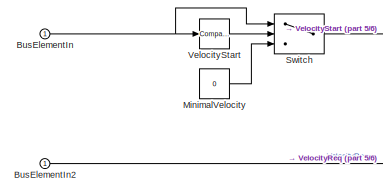
[diagram: TrainSimulator/ParamOrDefault - part 1/6, top left region]
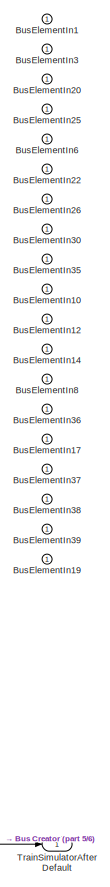
[diagram: TrainSimulator/ParamOrDefault - part 2/6, top right region]
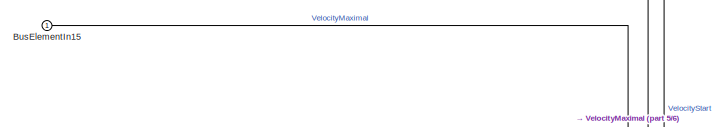
[diagram: TrainSimulator/ParamOrDefault - part 3/6, top center region]
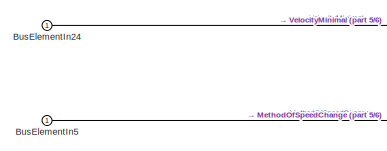
[diagram: TrainSimulator/ParamOrDefault - part 4/6, top left region]
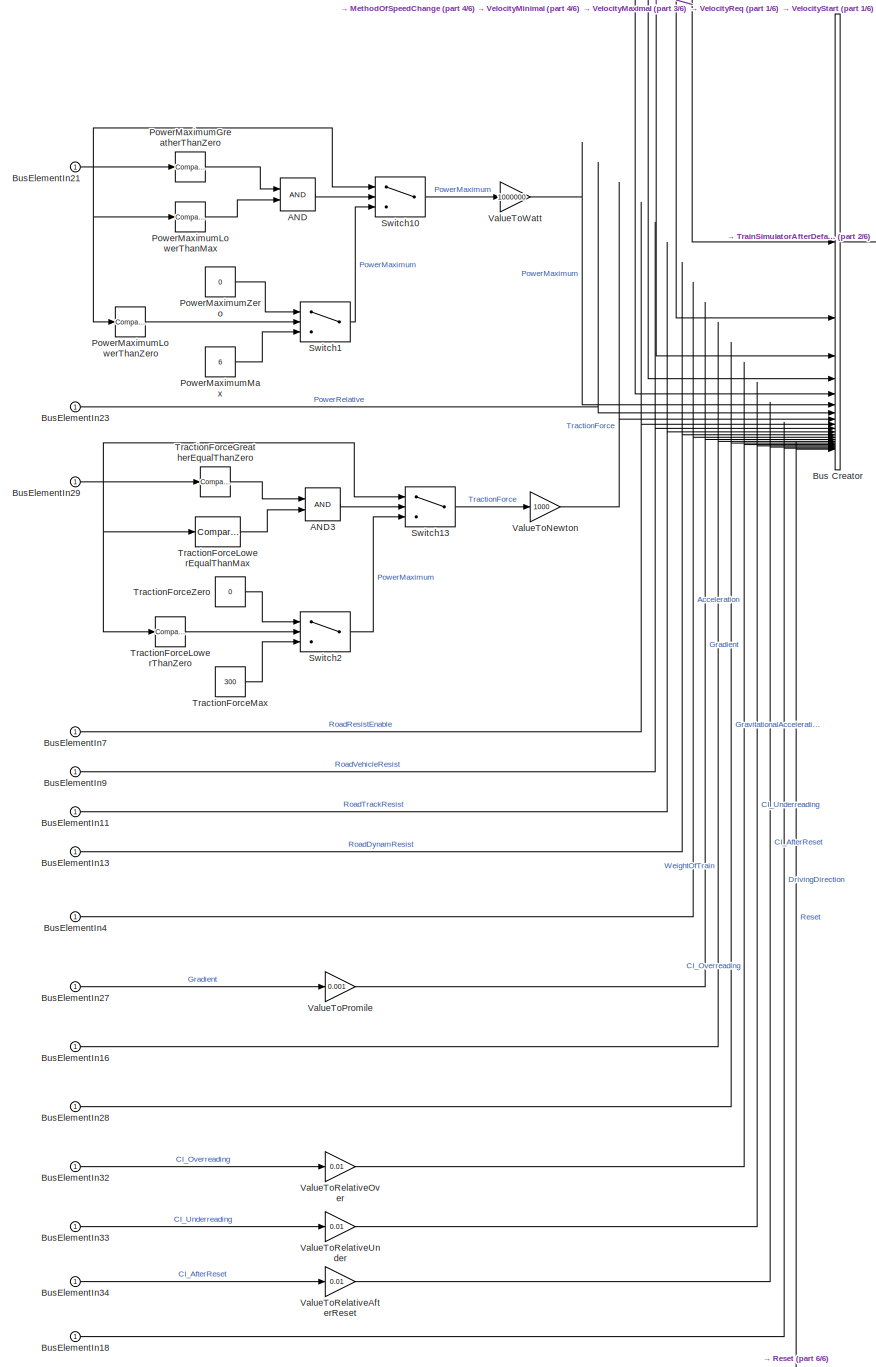
[diagram: TrainSimulator/ParamOrDefault - part 5/6, full width, middle band]
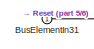
[diagram: TrainSimulator/ParamOrDefault - part 6/6, bottom left region]
BLOCK [SubSystem] TrainSimulator/ParamOrDefault
BLOCK [Logic] TrainSimulator/ParamOrDefault/AND
  AllPortsSameDT = off
  OutDataTypeStr = boolean
BLOCK [Logic] TrainSimulator/ParamOrDefault/AND3
  AllPortsSameDT = off
  OutDataTypeStr = boolean
BLOCK [BusCreator] TrainSimulator/ParamOrDefault/Bus Creator
  DisplayOption = bar
  InheritFromInputs = on
  Inputs = 21
  NonVirtualBus = on
  OutDataTypeStr = Bus: TrainSimulatorAfterDefault
BLOCK [Inport] TrainSimulator/ParamOrDefault/BusElementIn
BLOCK [Inport] TrainSimulator/ParamOrDefault/BusElementIn1
BLOCK [Inport] TrainSimulator/ParamOrDefault/BusElementIn10
BLOCK [Inport] TrainSimulator/ParamOrDefault/BusElementIn11
BLOCK [Inport] TrainSimulator/ParamOrDefault/BusElementIn12
BLOCK [Inport] TrainSimulator/ParamOrDefault/BusElementIn13
BLOCK [Inport] TrainSimulator/ParamOrDefault/BusElementIn14
BLOCK [Inport] TrainSimulator/ParamOrDefault/BusElementIn15
BLOCK [Inport] TrainSimulator/ParamOrDefault/BusElementIn16
BLOCK [Inport] TrainSimulator/ParamOrDefault/BusElementIn17
BLOCK [Inport] TrainSimulator/ParamOrDefault/BusElementIn18
BLOCK [Inport] TrainSimulator/ParamOrDefault/BusElementIn19
BLOCK [Inport] TrainSimulator/ParamOrDefault/BusElementIn2
BLOCK [Inport] TrainSimulator/ParamOrDefault/BusElementIn20
BLOCK [Inport] TrainSimulator/ParamOrDefault/BusElementIn21
BLOCK [Inport] TrainSimulator/ParamOrDefault/BusElementIn22
BLOCK [Inport] TrainSimulator/ParamOrDefault/BusElementIn23
BLOCK [Inport] TrainSimulator/ParamOrDefault/BusElementIn24
BLOCK [Inport] TrainSimulator/ParamOrDefault/BusElementIn25
BLOCK [Inport] TrainSimulator/ParamOrDefault/BusElementIn26
BLOCK [Inport] TrainSimulator/ParamOrDefault/BusElementIn27
BLOCK [Inport] TrainSimulator/ParamOrDefault/BusElementIn28
BLOCK [Inport] TrainSimulator/ParamOrDefault/BusElementIn29
BLOCK [Inport] TrainSimulator/ParamOrDefault/BusElementIn3
BLOCK [Inport] TrainSimulator/ParamOrDefault/BusElementIn30
BLOCK [Inport] TrainSimulator/ParamOrDefault/BusElementIn31
BLOCK [Inport] TrainSimulator/ParamOrDefault/BusElementIn32
BLOCK [Inport] TrainSimulator/ParamOrDefault/BusElementIn33
BLOCK [Inport] TrainSimulator/ParamOrDefault/BusElementIn34
BLOCK [Inport] TrainSimulator/ParamOrDefault/BusElementIn35
BLOCK [Inport] TrainSimulator/ParamOrDefault/BusElementIn36
BLOCK [Inport] TrainSimulator/ParamOrDefault/BusElementIn37
BLOCK [Inport] TrainSimulator/ParamOrDefault/BusElementIn38
BLOCK [Inport] TrainSimulator/ParamOrDefault/BusElementIn39
BLOCK [Inport] TrainSimulator/ParamOrDefault/BusElementIn4
BLOCK [Inport] TrainSimulator/ParamOrDefault/BusElementIn5
BLOCK [Inport] TrainSimulator/ParamOrDefault/BusElementIn6
BLOCK [Inport] TrainSimulator/ParamOrDefault/BusElementIn7
BLOCK [Inport] TrainSimulator/ParamOrDefault/BusElementIn8
BLOCK [Inport] TrainSimulator/ParamOrDefault/BusElementIn9
BLOCK [Constant] TrainSimulator/ParamOrDefault/MinimalVelocity
  OutDataTypeStr = double
  Value = 0
BLOCK [Reference] TrainSimulator/ParamOrDefault/PowerMaximumGreatherThanZero  REF=simulink/Logic and Bit
Operations/Compare
To Constant
  SourceBlock = simulink/Logic and Bit\nOperations/Compare\nTo Constant
  SourceType = Compare To Constant
BLOCK [Reference] TrainSimulator/ParamOrDefault/PowerMaximumLowerThanMax  REF=simulink/Logic and Bit
Operations/Compare
To Constant
  SourceBlock = simulink/Logic and Bit\nOperations/Compare\nTo Constant
  SourceType = Compare To Constant
BLOCK [Reference] TrainSimulator/ParamOrDefault/PowerMaximumLowerThanZero  REF=simulink/Logic and Bit
Operations/Compare
To Constant
  SourceBlock = simulink/Logic and Bit\nOperations/Compare\nTo Constant
  SourceType = Compare To Constant
BLOCK [Constant] TrainSimulator/ParamOrDefault/PowerMaximumMax
  OutDataTypeStr = double
  Value = 6
BLOCK [Constant] TrainSimulator/ParamOrDefault/PowerMaximumZero
  OutDataTypeStr = double
  Value = 0
BLOCK [Switch] TrainSimulator/ParamOrDefault/Switch
  Criteria = u2 > Threshold
  InputSameDT = off
  OutDataTypeStr = double
  OutMin = 0
  SaturateOnIntegerOverflow = off
BLOCK [Switch] TrainSimulator/ParamOrDefault/Switch1
  Criteria = u2 > Threshold
  InputSameDT = off
  OutDataTypeStr = double
  OutMin = 0
  SaturateOnIntegerOverflow = off
BLOCK [Switch] TrainSimulator/ParamOrDefault/Switch10
  Criteria = u2 > Threshold
  InputSameDT = off
  OutDataTypeStr = double
  OutMin = 0
  SaturateOnIntegerOverflow = off
BLOCK [Switch] TrainSimulator/ParamOrDefault/Switch13
  Criteria = u2 > Threshold
  InputSameDT = off
  OutDataTypeStr = double
  OutMax = 1
  OutMin = 0
  SaturateOnIntegerOverflow = off
BLOCK [Switch] TrainSimulator/ParamOrDefault/Switch2
  Criteria = u2 > Threshold
  InputSameDT = off
  OutDataTypeStr = double
  OutMin = 0
  SaturateOnIntegerOverflow = off
BLOCK [Reference] TrainSimulator/ParamOrDefault/TractionForceGreatherEqualThanZero  REF=simulink/Logic and Bit
Operations/Compare
To Constant
  SourceBlock = simulink/Logic and Bit\nOperations/Compare\nTo Constant
  SourceType = Compare To Constant
BLOCK [Reference] TrainSimulator/ParamOrDefault/TractionForceLowerEqualThanMax  REF=simulink/Logic and Bit
Operations/Compare
To Constant
  SourceBlock = simulink/Logic and Bit\nOperations/Compare\nTo Constant
  SourceType = Compare To Constant
BLOCK [Reference] TrainSimulator/ParamOrDefault/TractionForceLowerThanZero  REF=simulink/Logic and Bit
Operations/Compare
To Constant
  SourceBlock = simulink/Logic and Bit\nOperations/Compare\nTo Constant
  SourceType = Compare To Constant
BLOCK [Constant] TrainSimulator/ParamOrDefault/TractionForceMax
  OutDataTypeStr = double
  Value = 300
BLOCK [Constant] TrainSimulator/ParamOrDefault/TractionForceZero
  OutDataTypeStr = double
  Value = 0
BLOCK [Outport] TrainSimulator/ParamOrDefault/TrainSimulatorAfterDefault
  OutDataTypeStr = Bus: TrainSimulatorAfterDefault
BLOCK [Gain] TrainSimulator/ParamOrDefault/ValueToNewton
  Gain = 1000
  OutDataTypeStr = double
  ParamDataTypeStr = double
BLOCK [Gain] TrainSimulator/ParamOrDefault/ValueToPromile
  Gain = 0.001
  OutDataTypeStr = double
  ParamDataTypeStr = double
BLOCK [Gain] TrainSimulator/ParamOrDefault/ValueToRelativeAfterReset
  Gain = 0.01
  OutDataTypeStr = double
  ParamDataTypeStr = double
BLOCK [Gain] TrainSimulator/ParamOrDefault/ValueToRelativeOver
  Gain = 0.01
  OutDataTypeStr = double
  ParamDataTypeStr = double
BLOCK [Gain] TrainSimulator/ParamOrDefault/ValueToRelativeUnder
  Gain = 0.01
  OutDataTypeStr = double
  ParamDataTypeStr = double
BLOCK [Gain] TrainSimulator/ParamOrDefault/ValueToWatt
  Gain = 1000000
  OutDataTypeStr = double
  ParamDataTypeStr = double
BLOCK [Reference] TrainSimulator/ParamOrDefault/VelocityStart  REF=simulink/Logic and Bit
Operations/Compare
To Constant
  SourceBlock = simulink/Logic and Bit\nOperations/Compare\nTo Constant
  SourceType = Compare To Constant
BLOCK [Constant] TrainSimulator/PowerMaximum
  Value = PowerMaximum
BLOCK [Constant] TrainSimulator/PowerMaximumDefault
  Value = 6
BLOCK [Constant] TrainSimulator/PowerRelative
  Value = PowerRelative
BLOCK [Constant] TrainSimulator/PowerRelativeDefault
  Value = 0.9
BLOCK [PushButtonBlock] TrainSimulator/Push Button
  OffValue = 0.000000
BLOCK [Constant] TrainSimulator/Reset
  OutDataTypeStr = double
  OutMax = 1
  OutMin = 0
  Value = 0
BLOCK [Constant] TrainSimulator/RoadDynamResist
  OutDataTypeStr = double
  OutMin = 0
  Value = 11000
BLOCK [Constant] TrainSimulator/RoadDynamResistDefault
  OutDataTypeStr = double
  OutMin = 0
  Value = 11000
  VectorParams1D = off
BLOCK [Constant] TrainSimulator/RoadResistEnable
  OutDataTypeStr = double
  OutMax = 2
  OutMin = 0
  Value = RoadResistEnable
BLOCK [Constant] TrainSimulator/RoadResistEnableDefault
  OutDataTypeStr = double
  OutMax = 1
  OutMin = 0
BLOCK [Constant] TrainSimulator/RoadTrackResist
  OutDataTypeStr = double
  OutMin = 0
  Value = 7000
BLOCK [Constant] TrainSimulator/RoadTrackResistDefault
  OutDataTypeStr = double
  OutMin = 0
  Value = 7000
BLOCK [Constant] TrainSimulator/RoadVehicleResist
  OutDataTypeStr = double
  OutMin = 0
  Value = 2000
BLOCK [Constant] TrainSimulator/RoadVehicleResistDefault
  OutDataTypeStr = double
  OutMin = 0
  Value = 2000
BLOCK [Constant] TrainSimulator/TractionForce
  Value = TractionForce
BLOCK [Constant] TrainSimulator/TractionForceDefault
  Value = 300000
BLOCK [Constant] TrainSimulator/VelocityMaximal
  OutDataTypeStr = double
  OutMin = 0
  Value = 160
BLOCK [Constant] TrainSimulator/VelocityMaximalDefault
  OutDataTypeStr = double
  OutMin = 0
  Value = 320
BLOCK [Constant] TrainSimulator/VelocityMinimal
  OutDataTypeStr = double
  OutMin = 0
  Value = 0
BLOCK [Constant] TrainSimulator/VelocityMinimalDefault
  OutDataTypeStr = double
  OutMin = 0
  Value = 0
BLOCK [Constant] TrainSimulator/VelocityReq
  OutDataTypeStr = double
  OutMin = 0
  Value = VelocityReq
BLOCK [Constant] TrainSimulator/VelocityReqDefault
  OutDataTypeStr = double
  OutMin = 0
  Value = 160
BLOCK [Scope] TrainSimulator/VelocityScope
  Floating = off
  NumInputPorts = 1
  ScopeSpecificationString = Simulink.scopes.TimeScopeBlockCfg('CurrentConfiguration', extmgr.ConfigurationSet(extmgr.Configuration('Core','General UI',true),extmgr.Configuration('Core','Source UI',true),extmgr.Configuration('Sources','WiredSimulink',true,'DataLoggingVariableName','ScopeData3'),extmgr.Configuration('Visuals','Time Domain',true,'SerializedDisplays',{struct('MinYLimReal','9.00000','MaxYLimReal','11.00000','YLab...<+1584ch>
BLOCK [Constant] TrainSimulator/VelocityStart
  OutDataTypeStr = double
  OutMin = 0
  Value = VelocityStart
BLOCK [Constant] TrainSimulator/VelocityStartDefault
  OutDataTypeStr = double
  OutMin = 0
  Value = 0
BLOCK [SubSystem] TrainSimulator/VelocityToDistance
BLOCK [Switch] TrainSimulator/VelocityToDistance/AddOrSubtract
  Criteria = u2 > Threshold
  InputSameDT = off
  OutDataTypeStr = double
  SaturateOnIntegerOverflow = off
BLOCK [Inport] TrainSimulator/VelocityToDistance/ChangeDirection
  OutDataTypeStr = uint8
  Port = 2
BLOCK [Outport] TrainSimulator/VelocityToDistance/DistanceOut
  OutDataTypeStr = double
BLOCK [Reference] TrainSimulator/VelocityToDistance/DrivingDirectionNominal  REF=simulink/Logic and Bit
Operations/Compare
To Constant
  SourceBlock = simulink/Logic and Bit\nOperations/Compare\nTo Constant
  SourceType = Compare To Constant
BLOCK [Gain] TrainSimulator/VelocityToDistance/IfReverseDirectionSubtract
  Gain = -1
  OutDataTypeStr = double
BLOCK [Inport] TrainSimulator/VelocityToDistance/VelocityFinal
  OutDataTypeStr = double
BLOCK [DiscreteIntegrator] TrainSimulator/VelocityToDistance/VelocityToDistance
  ICPrevOutput = DiscIntNeverNeededParam
  ICPrevScaledInput = DiscIntNeverNeededParam
  InitialConditionSetting = Auto
  IntegratorMethod = Integration: Trapezoidal
  OutDataTypeStr = double
  SampleTime = -1
  gainval = 1
BLOCK [Constant] TrainSimulator/WeightOfTrain
  OutDataTypeStr = double
  OutMin = 0
  Value = 70000
BLOCK [Constant] TrainSimulator/WeightOfTrainDefault
  OutDataTypeStr = double
  OutMin = 0
  Value = 70000
NET TrainSimulator/AccToForceAndForceToAcc/Add1:1 -> TrainSimulator/AccToForceAndForceToAcc/BreakingCurves:2, TrainSimulator/AccToForceAndForceToAcc/ConstantAcceleration:2, TrainSimulator/AccToForceAndForceToAcc/TractionCharacteristics:4
LINE TrainSimulator/AccToForceAndForceToAcc/Add2:1 -> TrainSimulator/AccToForceAndForceToAcc/Deceleration:1
LINE TrainSimulator/AccToForceAndForceToAcc/Add:1 -> TrainSimulator/AccToForceAndForceToAcc/Acceleration:1
LINE TrainSimulator/AccToForceAndForceToAcc/BreakingCurves/AccToForce:1 -> TrainSimulator/AccToForceAndForceToAcc/BreakingCurves/RoadResistForceSubtraction:1
LINE TrainSimulator/AccToForceAndForceToAcc/BreakingCurves/AccelerationIn:1 -> TrainSimulator/AccToForceAndForceToAcc/BreakingCurves/AccelerationMaking:1
LINE TrainSimulator/AccToForceAndForceToAcc/BreakingCurves/AccelerationMaking:1 -> TrainSimulator/AccToForceAndForceToAcc/BreakingCurves/AccToForce:1
NET TrainSimulator/AccToForceAndForceToAcc/BreakingCurves/DecelerationForceSubtraction:1 -> TrainSimulator/AccToForceAndForceToAcc/BreakingCurves/GravityForceAddition1:1, TrainSimulator/AccToForceAndForceToAcc/BreakingCurves/GravityForceSubtraction1:1
LINE TrainSimulator/AccToForceAndForceToAcc/BreakingCurves/DecelerationIn:1 -> TrainSimulator/AccToForceAndForceToAcc/BreakingCurves/DecelerationMaking:1
LINE TrainSimulator/AccToForceAndForceToAcc/BreakingCurves/DecelerationMaking:1 -> TrainSimulator/AccToForceAndForceToAcc/BreakingCurves/DecelerationToForce:1
LINE TrainSimulator/AccToForceAndForceToAcc/BreakingCurves/DecelerationToForce:1 -> TrainSimulator/AccToForceAndForceToAcc/BreakingCurves/DecelerationForceSubtraction:1
LINE TrainSimulator/AccToForceAndForceToAcc/BreakingCurves/ForceToAcc:1 -> TrainSimulator/AccToForceAndForceToAcc/BreakingCurves/AccelerationOut:1
LINE TrainSimulator/AccToForceAndForceToAcc/BreakingCurves/ForceToAccDeceleration:1 -> TrainSimulator/AccToForceAndForceToAcc/BreakingCurves/DecelerationOut:1
NET TrainSimulator/AccToForceAndForceToAcc/BreakingCurves/Gradient:1 -> TrainSimulator/AccToForceAndForceToAcc/BreakingCurves/GradientPosOrNeg1:2, TrainSimulator/AccToForceAndForceToAcc/BreakingCurves/GradientPosOrNeg2:2, TrainSimulator/AccToForceAndForceToAcc/BreakingCurves/GravityForce:2
LINE TrainSimulator/AccToForceAndForceToAcc/BreakingCurves/GradientPosOrNeg1:1 -> TrainSimulator/AccToForceAndForceToAcc/BreakingCurves/ForceToAcc:1
LINE TrainSimulator/AccToForceAndForceToAcc/BreakingCurves/GradientPosOrNeg2:1 -> TrainSimulator/AccToForceAndForceToAcc/BreakingCurves/ForceToAccDeceleration:1
LINE TrainSimulator/AccToForceAndForceToAcc/BreakingCurves/GravitationalAcceleration:1 -> TrainSimulator/AccToForceAndForceToAcc/BreakingCurves/GravityForce:3
NET TrainSimulator/AccToForceAndForceToAcc/BreakingCurves/GravityForce:1 -> TrainSimulator/AccToForceAndForceToAcc/BreakingCurves/GravityForceAddition1:2, TrainSimulator/AccToForceAndForceToAcc/BreakingCurves/GravityForceAddition:2, TrainSimulator/AccToForceAndForceToAcc/BreakingCurves/GravityForceSubtraction1:2, TrainSimulator/AccToForceAndForceToAcc/BreakingCurves/GravityForceSubtraction:2
LINE TrainSimulator/AccToForceAndForceToAcc/BreakingCurves/GravityForceAddition1:1 -> TrainSimulator/AccToForceAndForceToAcc/BreakingCurves/GradientPosOrNeg2:1
LINE TrainSimulator/AccToForceAndForceToAcc/BreakingCurves/GravityForceAddition:1 -> TrainSimulator/AccToForceAndForceToAcc/BreakingCurves/GradientPosOrNeg1:3
LINE TrainSimulator/AccToForceAndForceToAcc/BreakingCurves/GravityForceSubtraction1:1 -> TrainSimulator/AccToForceAndForceToAcc/BreakingCurves/GradientPosOrNeg2:3
LINE TrainSimulator/AccToForceAndForceToAcc/BreakingCurves/GravityForceSubtraction:1 -> TrainSimulator/AccToForceAndForceToAcc/BreakingCurves/GradientPosOrNeg1:1
NET TrainSimulator/AccToForceAndForceToAcc/BreakingCurves/RoadResistForceSubtraction:1 -> TrainSimulator/AccToForceAndForceToAcc/BreakingCurves/GravityForceAddition:1, TrainSimulator/AccToForceAndForceToAcc/BreakingCurves/GravityForceSubtraction:1
NET TrainSimulator/AccToForceAndForceToAcc/BreakingCurves/RoadResistTotalIn:1 -> TrainSimulator/AccToForceAndForceToAcc/BreakingCurves/DecelerationForceSubtraction:2, TrainSimulator/AccToForceAndForceToAcc/BreakingCurves/RoadResistForceSubtraction:2
NET TrainSimulator/AccToForceAndForceToAcc/BreakingCurves/WeightOfTrainIn:1 -> TrainSimulator/AccToForceAndForceToAcc/BreakingCurves/AccToForce:2, TrainSimulator/AccToForceAndForceToAcc/BreakingCurves/DecelerationToForce:2, TrainSimulator/AccToForceAndForceToAcc/BreakingCurves/ForceToAcc:2, TrainSimulator/AccToForceAndForceToAcc/BreakingCurves/ForceToAccDeceleration:2, TrainSimulator/AccToForceAndForceToAcc/BreakingCurves/GravityForce:1
LINE TrainSimulator/AccToForceAndForceToAcc/BreakingCurves:1 -> TrainSimulator/AccToForceAndForceToAcc/Add:4
LINE TrainSimulator/AccToForceAndForceToAcc/BreakingCurves:2 -> TrainSimulator/AccToForceAndForceToAcc/Add2:2
LINE TrainSimulator/AccToForceAndForceToAcc/BusElementIn10:1 -> TrainSimulator/AccToForceAndForceToAcc/TractionCharacteristics:2
LINE TrainSimulator/AccToForceAndForceToAcc/BusElementIn11:1 -> TrainSimulator/AccToForceAndForceToAcc/TractionCharacteristics:3
LINE TrainSimulator/AccToForceAndForceToAcc/BusElementIn1:1 -> TrainSimulator/AccToForceAndForceToAcc/IfRoadResistsEnable:1
LINE TrainSimulator/AccToForceAndForceToAcc/BusElementIn2:1 -> TrainSimulator/AccToForceAndForceToAcc/RoadResistsIncluded:1
LINE TrainSimulator/AccToForceAndForceToAcc/BusElementIn3:1 -> TrainSimulator/AccToForceAndForceToAcc/RoadResistsIncluded:2
LINE TrainSimulator/AccToForceAndForceToAcc/BusElementIn4:1 -> TrainSimulator/AccToForceAndForceToAcc/RoadResistsIncluded:3
NET TrainSimulator/AccToForceAndForceToAcc/BusElementIn5:1 -> TrainSimulator/AccToForceAndForceToAcc/BreakingCurves:1, TrainSimulator/AccToForceAndForceToAcc/BreakingCurves:4, TrainSimulator/AccToForceAndForceToAcc/ConstantAcceleration:1, TrainSimulator/AccToForceAndForceToAcc/ConstantAcceleration:4, TrainSimulator/AccToForceAndForceToAcc/ConstantVelocity:1, TrainSimulator/AccToForceAndForceToAcc/SuddenChangeOfVelocity:1
NET TrainSimulator/AccToForceAndForceToAcc/BusElementIn6:1 -> TrainSimulator/AccToForceAndForceToAcc/BreakingCurves:3, TrainSimulator/AccToForceAndForceToAcc/ConstantAcceleration:3, TrainSimulator/AccToForceAndForceToAcc/TractionCharacteristics:5
NET TrainSimulator/AccToForceAndForceToAcc/BusElementIn7:1 -> TrainSimulator/AccToForceAndForceToAcc/BreakingCurves:5, TrainSimulator/AccToForceAndForceToAcc/ConstantAcceleration:5, TrainSimulator/AccToForceAndForceToAcc/TractionCharacteristics:6
NET TrainSimulator/AccToForceAndForceToAcc/BusElementIn8:1 -> TrainSimulator/AccToForceAndForceToAcc/BreakingCurves:6, TrainSimulator/AccToForceAndForceToAcc/ConstantAcceleration:6, TrainSimulator/AccToForceAndForceToAcc/TractionCharacteristics:7
LINE TrainSimulator/AccToForceAndForceToAcc/BusElementIn9:1 -> TrainSimulator/AccToForceAndForceToAcc/TractionCharacteristics:1
LINE TrainSimulator/AccToForceAndForceToAcc/BusElementIn:1 -> TrainSimulator/AccToForceAndForceToAcc/MethodOfSpeedChange:1
LINE TrainSimulator/AccToForceAndForceToAcc/ConstantAcceleration/Abs:1 -> TrainSimulator/AccToForceAndForceToAcc/ConstantAcceleration/GravityForce:2
LINE TrainSimulator/AccToForceAndForceToAcc/ConstantAcceleration/AccelerationIn:1 -> TrainSimulator/AccToForceAndForceToAcc/ConstantAcceleration/AccelerationMaking:1
LINE TrainSimulator/AccToForceAndForceToAcc/ConstantAcceleration/AccelerationMaking:1 -> TrainSimulator/AccToForceAndForceToAcc/ConstantAcceleration/AccelerationToForce:1
LINE TrainSimulator/AccToForceAndForceToAcc/ConstantAcceleration/AccelerationToForce:1 -> TrainSimulator/AccToForceAndForceToAcc/ConstantAcceleration/RoadResistForceSubtraction:1
NET TrainSimulator/AccToForceAndForceToAcc/ConstantAcceleration/DecelerationForceSubtraction:1 -> TrainSimulator/AccToForceAndForceToAcc/ConstantAcceleration/GravityForceAddition1:1, TrainSimulator/AccToForceAndForceToAcc/ConstantAcceleration/GravityForceSubtraction1:1
LINE TrainSimulator/AccToForceAndForceToAcc/ConstantAcceleration/DecelerationIn:1 -> TrainSimulator/AccToForceAndForceToAcc/ConstantAcceleration/DecelerationMaking:1
LINE TrainSimulator/AccToForceAndForceToAcc/ConstantAcceleration/DecelerationMaking:1 -> TrainSimulator/AccToForceAndForceToAcc/ConstantAcceleration/DecelerationToForce:1
LINE TrainSimulator/AccToForceAndForceToAcc/ConstantAcceleration/DecelerationToForce:1 -> TrainSimulator/AccToForceAndForceToAcc/ConstantAcceleration/DecelerationForceSubtraction:1
LINE TrainSimulator/AccToForceAndForceToAcc/ConstantAcceleration/ForceToAccDeceleration:1 -> TrainSimulator/AccToForceAndForceToAcc/ConstantAcceleration/DecelerationOut:1
LINE TrainSimulator/AccToForceAndForceToAcc/ConstantAcceleration/ForceToAcceleratino:1 -> TrainSimulator/AccToForceAndForceToAcc/ConstantAcceleration/AccelerationOut:1
NET TrainSimulator/AccToForceAndForceToAcc/ConstantAcceleration/Gradient:1 -> TrainSimulator/AccToForceAndForceToAcc/ConstantAcceleration/Abs:1, TrainSimulator/AccToForceAndForceToAcc/ConstantAcceleration/GradientPosOrNeg1:2, TrainSimulator/AccToForceAndForceToAcc/ConstantAcceleration/GradientPosOrNeg2:2
LINE TrainSimulator/AccToForceAndForceToAcc/ConstantAcceleration/GradientPosOrNeg1:1 -> TrainSimulator/AccToForceAndForceToAcc/ConstantAcceleration/ForceToAcceleratino:1
LINE TrainSimulator/AccToForceAndForceToAcc/ConstantAcceleration/GradientPosOrNeg2:1 -> TrainSimulator/AccToForceAndForceToAcc/ConstantAcceleration/ForceToAccDeceleration:1
LINE TrainSimulator/AccToForceAndForceToAcc/ConstantAcceleration/GravitationalAcceleration:1 -> TrainSimulator/AccToForceAndForceToAcc/ConstantAcceleration/GravityForce:3
NET TrainSimulator/AccToForceAndForceToAcc/ConstantAcceleration/GravityForce:1 -> TrainSimulator/AccToForceAndForceToAcc/ConstantAcceleration/GravityForceAddition1:2, TrainSimulator/AccToForceAndForceToAcc/ConstantAcceleration/GravityForceAddition:2, TrainSimulator/AccToForceAndForceToAcc/ConstantAcceleration/GravityForceSubtraction1:2, TrainSimulator/AccToForceAndForceToAcc/ConstantAcceleration/GravityForceSubtraction:2
LINE TrainSimulator/AccToForceAndForceToAcc/ConstantAcceleration/GravityForceAddition1:1 -> TrainSimulator/AccToForceAndForceToAcc/ConstantAcceleration/GradientPosOrNeg2:3
LINE TrainSimulator/AccToForceAndForceToAcc/ConstantAcceleration/GravityForceAddition:1 -> TrainSimulator/AccToForceAndForceToAcc/ConstantAcceleration/GradientPosOrNeg1:3
LINE TrainSimulator/AccToForceAndForceToAcc/ConstantAcceleration/GravityForceSubtraction1:1 -> TrainSimulator/AccToForceAndForceToAcc/ConstantAcceleration/GradientPosOrNeg2:1
LINE TrainSimulator/AccToForceAndForceToAcc/ConstantAcceleration/GravityForceSubtraction:1 -> TrainSimulator/AccToForceAndForceToAcc/ConstantAcceleration/GradientPosOrNeg1:1
NET TrainSimulator/AccToForceAndForceToAcc/ConstantAcceleration/RoadResistForceSubtraction:1 -> TrainSimulator/AccToForceAndForceToAcc/ConstantAcceleration/GravityForceAddition:1, TrainSimulator/AccToForceAndForceToAcc/ConstantAcceleration/GravityForceSubtraction:1
NET TrainSimulator/AccToForceAndForceToAcc/ConstantAcceleration/RoadResistTotalIn:1 -> TrainSimulator/AccToForceAndForceToAcc/ConstantAcceleration/DecelerationForceSubtraction:2, TrainSimulator/AccToForceAndForceToAcc/ConstantAcceleration/RoadResistForceSubtraction:2
NET TrainSimulator/AccToForceAndForceToAcc/ConstantAcceleration/WeightOfTrainIn:1 -> TrainSimulator/AccToForceAndForceToAcc/ConstantAcceleration/AccelerationToForce:2, TrainSimulator/AccToForceAndForceToAcc/ConstantAcceleration/DecelerationToForce:2, TrainSimulator/AccToForceAndForceToAcc/ConstantAcceleration/ForceToAccDeceleration:2, TrainSimulator/AccToForceAndForceToAcc/ConstantAcceleration/ForceToAcceleratino:2, TrainSimulator/AccToForceAndForceToAcc/ConstantAcceleration/GravityForce:1
LINE TrainSimulator/AccToForceAndForceToAcc/ConstantAcceleration:1 -> TrainSimulator/AccToForceAndForceToAcc/Add:3
LINE TrainSimulator/AccToForceAndForceToAcc/ConstantAcceleration:2 -> TrainSimulator/AccToForceAndForceToAcc/Add2:1
LINE TrainSimulator/AccToForceAndForceToAcc/ConstantVelocity/AccelerationIn:1 -> TrainSimulator/AccToForceAndForceToAcc/ConstantVelocity/AccelerationOut:1
LINE TrainSimulator/AccToForceAndForceToAcc/ConstantVelocity:1 -> TrainSimulator/AccToForceAndForceToAcc/Add:1
LINE TrainSimulator/AccToForceAndForceToAcc/DynamResist/DynamResistIn:1 -> TrainSimulator/AccToForceAndForceToAcc/DynamResist/DynamResistOut:1
LINE TrainSimulator/AccToForceAndForceToAcc/DynamResist:1 -> TrainSimulator/AccToForceAndForceToAcc/Add1:3
LINE TrainSimulator/AccToForceAndForceToAcc/IfRoadResistsEnable:1 -> TrainSimulator/AccToForceAndForceToAcc/RoadResistsIncluded:ifaction
LINE TrainSimulator/AccToForceAndForceToAcc/IfRoadResistsEnable:2 -> TrainSimulator/AccToForceAndForceToAcc/RoadResistsNotIncluded:ifaction
LINE TrainSimulator/AccToForceAndForceToAcc/MethodOfSpeedChange:1 -> TrainSimulator/AccToForceAndForceToAcc/ConstantVelocity:ifaction
LINE TrainSimulator/AccToForceAndForceToAcc/MethodOfSpeedChange:2 -> TrainSimulator/AccToForceAndForceToAcc/SuddenChangeOfVelocity:ifaction
LINE TrainSimulator/AccToForceAndForceToAcc/MethodOfSpeedChange:3 -> TrainSimulator/AccToForceAndForceToAcc/ConstantAcceleration:ifaction
LINE TrainSimulator/AccToForceAndForceToAcc/MethodOfSpeedChange:4 -> TrainSimulator/AccToForceAndForceToAcc/BreakingCurves:ifaction
LINE TrainSimulator/AccToForceAndForceToAcc/MethodOfSpeedChange:5 -> TrainSimulator/AccToForceAndForceToAcc/TractionCharacteristics:ifaction
LINE TrainSimulator/AccToForceAndForceToAcc/RoadResistsIncluded/RoadDynamResistIn:1 -> TrainSimulator/AccToForceAndForceToAcc/RoadResistsIncluded/RoadDynamResistOut:1
LINE TrainSimulator/AccToForceAndForceToAcc/RoadResistsIncluded/RoadTrackResistIn:1 -> TrainSimulator/AccToForceAndForceToAcc/RoadResistsIncluded/RoadTrackResistOut:1
LINE TrainSimulator/AccToForceAndForceToAcc/RoadResistsIncluded/RoadVehicleResistIn:1 -> TrainSimulator/AccToForceAndForceToAcc/RoadResistsIncluded/RoadVehicleResistOut:1
LINE TrainSimulator/AccToForceAndForceToAcc/RoadResistsIncluded:1 -> TrainSimulator/AccToForceAndForceToAcc/Sum2:1
LINE TrainSimulator/AccToForceAndForceToAcc/RoadResistsIncluded:2 -> TrainSimulator/AccToForceAndForceToAcc/Sum1:1
LINE TrainSimulator/AccToForceAndForceToAcc/RoadResistsIncluded:3 -> TrainSimulator/AccToForceAndForceToAcc/Sum:1
LINE TrainSimulator/AccToForceAndForceToAcc/RoadResistsNotIncluded/RoadDynamResistZero:1 -> TrainSimulator/AccToForceAndForceToAcc/RoadResistsNotIncluded/RoadDynamResistOut:1
LINE TrainSimulator/AccToForceAndForceToAcc/RoadResistsNotIncluded/RoadTrackResistZero:1 -> TrainSimulator/AccToForceAndForceToAcc/RoadResistsNotIncluded/RoadTrackResistOut:1
LINE TrainSimulator/AccToForceAndForceToAcc/RoadResistsNotIncluded/RoadVehicleResistZero:1 -> TrainSimulator/AccToForceAndForceToAcc/RoadResistsNotIncluded/RoadVehicleResistOut:1
LINE TrainSimulator/AccToForceAndForceToAcc/RoadResistsNotIncluded:1 -> TrainSimulator/AccToForceAndForceToAcc/Sum:2
LINE TrainSimulator/AccToForceAndForceToAcc/RoadResistsNotIncluded:2 -> TrainSimulator/AccToForceAndForceToAcc/Sum1:2
LINE TrainSimulator/AccToForceAndForceToAcc/RoadResistsNotIncluded:3 -> TrainSimulator/AccToForceAndForceToAcc/Sum2:2
LINE TrainSimulator/AccToForceAndForceToAcc/SuddenChangeOfVelocity/AccelerationIn:1 -> TrainSimulator/AccToForceAndForceToAcc/SuddenChangeOfVelocity/AccelerationOut:1
LINE TrainSimulator/AccToForceAndForceToAcc/SuddenChangeOfVelocity:1 -> TrainSimulator/AccToForceAndForceToAcc/Add:2
LINE TrainSimulator/AccToForceAndForceToAcc/Sum1:1 -> TrainSimulator/AccToForceAndForceToAcc/TrackResist:1
LINE TrainSimulator/AccToForceAndForceToAcc/Sum2:1 -> TrainSimulator/AccToForceAndForceToAcc/VehicleResist:1
LINE TrainSimulator/AccToForceAndForceToAcc/Sum:1 -> TrainSimulator/AccToForceAndForceToAcc/DynamResist:1
LINE TrainSimulator/AccToForceAndForceToAcc/TrackResist/TrackResistIn:1 -> TrainSimulator/AccToForceAndForceToAcc/TrackResist/TrackResistOut:1
LINE TrainSimulator/AccToForceAndForceToAcc/TrackResist:1 -> TrainSimulator/AccToForceAndForceToAcc/Add1:2
NET TrainSimulator/AccToForceAndForceToAcc/TractionCharacteristics/AccelerationGravity:1 -> TrainSimulator/AccToForceAndForceToAcc/TractionCharacteristics/AccelerationToDownHill:2, TrainSimulator/AccToForceAndForceToAcc/TractionCharacteristics/AccelerationToUpHill:2, TrainSimulator/AccToForceAndForceToAcc/TractionCharacteristics/DecelerationToDownHill:2, TrainSimulator/AccToForceAndForceToAcc/TractionCharacteristics/DecelerationToUpHill:2
LINE TrainSimulator/AccToForceAndForceToAcc/TractionCharacteristics/AccelerationSwitch:1 -> TrainSimulator/AccToForceAndForceToAcc/TractionCharacteristics/LimitMaxAcceleration:1
LINE TrainSimulator/AccToForceAndForceToAcc/TractionCharacteristics/AccelerationToDeceleration:1 -> TrainSimulator/AccToForceAndForceToAcc/TractionCharacteristics/DecelerationOut:1
LINE TrainSimulator/AccToForceAndForceToAcc/TractionCharacteristics/AccelerationToDownHill:1 -> TrainSimulator/AccToForceAndForceToAcc/TractionCharacteristics/AccelerationSwitch:3
LINE TrainSimulator/AccToForceAndForceToAcc/TractionCharacteristics/AccelerationToUpHill:1 -> TrainSimulator/AccToForceAndForceToAcc/TractionCharacteristics/AccelerationSwitch:1
LINE TrainSimulator/AccToForceAndForceToAcc/TractionCharacteristics/DecelerationSwitch:1 -> TrainSimulator/AccToForceAndForceToAcc/TractionCharacteristics/LimitMaxAcceleration:2
LINE TrainSimulator/AccToForceAndForceToAcc/TractionCharacteristics/DecelerationToDownHill:1 -> TrainSimulator/AccToForceAndForceToAcc/TractionCharacteristics/DecelerationSwitch:3
LINE TrainSimulator/AccToForceAndForceToAcc/TractionCharacteristics/DecelerationToUpHill:1 -> TrainSimulator/AccToForceAndForceToAcc/TractionCharacteristics/DecelerationSwitch:1
LINE TrainSimulator/AccToForceAndForceToAcc/TractionCharacteristics/DivisionByVelocity:1 -> TrainSimulator/AccToForceAndForceToAcc/TractionCharacteristics/SelectVelocityOrNot:3
NET TrainSimulator/AccToForceAndForceToAcc/TractionCharacteristics/ForceToAcceleration:1 -> TrainSimulator/AccToForceAndForceToAcc/TractionCharacteristics/AccelerationToDownHill:1, TrainSimulator/AccToForceAndForceToAcc/TractionCharacteristics/AccelerationToUpHill:1, TrainSimulator/AccToForceAndForceToAcc/TractionCharacteristics/DecelerationToDownHill:1, TrainSimulator/AccToForceAndForceToAcc/TractionCharacteristics/DecelerationToUpHill:1
NET TrainSimulator/AccToForceAndForceToAcc/TractionCharacteristics/Gradient:1 -> TrainSimulator/AccToForceAndForceToAcc/TractionCharacteristics/AccelerationGravity:1, TrainSimulator/AccToForceAndForceToAcc/TractionCharacteristics/AccelerationSwitch:2, TrainSimulator/AccToForceAndForceToAcc/TractionCharacteristics/DecelerationSwitch:2
LINE TrainSimulator/AccToForceAndForceToAcc/TractionCharacteristics/GravitationalAcceleration:1 -> TrainSimulator/AccToForceAndForceToAcc/TractionCharacteristics/AccelerationGravity:2
NET TrainSimulator/AccToForceAndForceToAcc/TractionCharacteristics/GreaterThan:1 -> TrainSimulator/AccToForceAndForceToAcc/TractionCharacteristics/SelectMin:2, TrainSimulator/AccToForceAndForceToAcc/TractionCharacteristics/SelectVelocityOrNot:2
LINE TrainSimulator/AccToForceAndForceToAcc/TractionCharacteristics/LimitMaxAcceleration:1 -> TrainSimulator/AccToForceAndForceToAcc/TractionCharacteristics/AccelerationOut:1
LINE TrainSimulator/AccToForceAndForceToAcc/TractionCharacteristics/LimitMaxAcceleration:2 -> TrainSimulator/AccToForceAndForceToAcc/TractionCharacteristics/AccelerationToDeceleration:1
LINE TrainSimulator/AccToForceAndForceToAcc/TractionCharacteristics/PowerMaximum:1 -> TrainSimulator/AccToForceAndForceToAcc/TractionCharacteristics/TractionPower:1
LINE TrainSimulator/AccToForceAndForceToAcc/TractionCharacteristics/PowerRelative:1 -> TrainSimulator/AccToForceAndForceToAcc/TractionCharacteristics/TractionPower:2
LINE TrainSimulator/AccToForceAndForceToAcc/TractionCharacteristics/RoadResistForceSubtraction:1 -> TrainSimulator/AccToForceAndForceToAcc/TractionCharacteristics/ForceToAcceleration:1
LINE TrainSimulator/AccToForceAndForceToAcc/TractionCharacteristics/RoadResistTotalIn:1 -> TrainSimulator/AccToForceAndForceToAcc/TractionCharacteristics/RoadResistForceSubtraction:2
LINE TrainSimulator/AccToForceAndForceToAcc/TractionCharacteristics/SelectMin:1 -> TrainSimulator/AccToForceAndForceToAcc/TractionCharacteristics/RoadResistForceSubtraction:1
LINE TrainSimulator/AccToForceAndForceToAcc/TractionCharacteristics/SelectVelocityOrNot:1 -> TrainSimulator/AccToForceAndForceToAcc/TractionCharacteristics/ForceToAcceleration:2
NET TrainSimulator/AccToForceAndForceToAcc/TractionCharacteristics/TractionForce:1 -> TrainSimulator/AccToForceAndForceToAcc/TractionCharacteristics/GreaterThan:2, TrainSimulator/AccToForceAndForceToAcc/TractionCharacteristics/SelectMin:1
NET TrainSimulator/AccToForceAndForceToAcc/TractionCharacteristics/TractionPower:1 -> TrainSimulator/AccToForceAndForceToAcc/TractionCharacteristics/GreaterThan:1, TrainSimulator/AccToForceAndForceToAcc/TractionCharacteristics/SelectMin:3
LINE TrainSimulator/AccToForceAndForceToAcc/TractionCharacteristics/VelocityFinalFeedback:1 -> TrainSimulator/AccToForceAndForceToAcc/TractionCharacteristics/ZeroReplacedByDecimal:1
NET TrainSimulator/AccToForceAndForceToAcc/TractionCharacteristics/WeightOfTrainIn:1 -> TrainSimulator/AccToForceAndForceToAcc/TractionCharacteristics/DivisionByVelocity:2, TrainSimulator/AccToForceAndForceToAcc/TractionCharacteristics/SelectVelocityOrNot:1
LINE TrainSimulator/AccToForceAndForceToAcc/TractionCharacteristics/ZeroReplacedByDecimal:1 -> TrainSimulator/AccToForceAndForceToAcc/TractionCharacteristics/DivisionByVelocity:1
LINE TrainSimulator/AccToForceAndForceToAcc/TractionCharacteristics:1 -> TrainSimulator/AccToForceAndForceToAcc/Add:5
LINE TrainSimulator/AccToForceAndForceToAcc/TractionCharacteristics:2 -> TrainSimulator/AccToForceAndForceToAcc/Add2:3
LINE TrainSimulator/AccToForceAndForceToAcc/VehicleResist/VehicleResisIn:1 -> TrainSimulator/AccToForceAndForceToAcc/VehicleResist/VehicleResisOut:1
LINE TrainSimulator/AccToForceAndForceToAcc/VehicleResist:1 -> TrainSimulator/AccToForceAndForceToAcc/Add1:1
LINE TrainSimulator/AccToForceAndForceToAcc/VelocityFinalFeedback:1 -> TrainSimulator/AccToForceAndForceToAcc/TractionCharacteristics:8
LINE TrainSimulator/AccToForceAndForceToAcc:1 -> TrainSimulator/AccelerationCalculating:2
LINE TrainSimulator/AccToForceAndForceToAcc:2 -> TrainSimulator/AccelerationCalculating:3
LINE TrainSimulator/AccToVelocity/AND:1 -> TrainSimulator/AccToVelocity/Switch:2
LINE TrainSimulator/AccToVelocity/Acceleration:1 -> TrainSimulator/AccToVelocity/DynamicChangeLimitMaxMinVelocity:1
LINE TrainSimulator/AccToVelocity/BusElementIn1:1 -> TrainSimulator/AccToVelocity/Switch:1
LINE TrainSimulator/AccToVelocity/BusElementIn2:1 -> TrainSimulator/AccToVelocity/DynamicChangeLimitMaxMinVelocity:4
LINE TrainSimulator/AccToVelocity/BusElementIn3:1 -> TrainSimulator/AccToVelocity/DynamicChangeLimitMaxMinVelocity:2
NET TrainSimulator/AccToVelocity/BusElementIn:1 -> TrainSimulator/AccToVelocity/Delay:2, TrainSimulator/AccToVelocity/DynamicChangeLimitMaxMinVelocity:3
LINE TrainSimulator/AccToVelocity/Delay:1 -> TrainSimulator/AccToVelocity/VelocityOut:1
LINE TrainSimulator/AccToVelocity/DifferenceOfDirection:1 -> TrainSimulator/AccToVelocity/AND:1
LINE TrainSimulator/AccToVelocity/DynamicChangeLimitMaxMinVelocity/AccToVelocity:1 -> TrainSimulator/AccToVelocity/DynamicChangeLimitMaxMinVelocity/Delay:1
NET TrainSimulator/AccToVelocity/DynamicChangeLimitMaxMinVelocity/Acceleration:1 -> TrainSimulator/AccToVelocity/DynamicChangeLimitMaxMinVelocity/BetweenBoundaries:1, TrainSimulator/AccToVelocity/DynamicChangeLimitMaxMinVelocity/Compare To Zero1:1, TrainSimulator/AccToVelocity/DynamicChangeLimitMaxMinVelocity/Compare To Zero:1
LINE TrainSimulator/AccToVelocity/DynamicChangeLimitMaxMinVelocity/BetweenBoundaries:1 -> TrainSimulator/AccToVelocity/DynamicChangeLimitMaxMinVelocity/AccToVelocity:1
LINE TrainSimulator/AccToVelocity/DynamicChangeLimitMaxMinVelocity/BetweenBoundarioes:1 -> TrainSimulator/AccToVelocity/DynamicChangeLimitMaxMinVelocity/BetweenBoundaries:2
LINE TrainSimulator/AccToVelocity/DynamicChangeLimitMaxMinVelocity/BetweenZeroAndMinimal:1 -> TrainSimulator/AccToVelocity/DynamicChangeLimitMaxMinVelocity/BetweenBoundarioes:2
LINE TrainSimulator/AccToVelocity/DynamicChangeLimitMaxMinVelocity/BetweenZeroAndReq:1 -> TrainSimulator/AccToVelocity/DynamicChangeLimitMaxMinVelocity/BetweenBoundarioes:1
LINE TrainSimulator/AccToVelocity/DynamicChangeLimitMaxMinVelocity/Compare To Zero1:1 -> TrainSimulator/AccToVelocity/DynamicChangeLimitMaxMinVelocity/BetweenZeroAndMinimal:1
LINE TrainSimulator/AccToVelocity/DynamicChangeLimitMaxMinVelocity/Compare To Zero:1 -> TrainSimulator/AccToVelocity/DynamicChangeLimitMaxMinVelocity/BetweenZeroAndReq:2
NET TrainSimulator/AccToVelocity/DynamicChangeLimitMaxMinVelocity/Delay:1 -> TrainSimulator/AccToVelocity/DynamicChangeLimitMaxMinVelocity/Relational Operator1:1, TrainSimulator/AccToVelocity/DynamicChangeLimitMaxMinVelocity/Relational Operator:1, TrainSimulator/AccToVelocity/DynamicChangeLimitMaxMinVelocity/VelocityReqAndVelocityMinimal:2
LINE TrainSimulator/AccToVelocity/DynamicChangeLimitMaxMinVelocity/Relational Operator1:1 -> TrainSimulator/AccToVelocity/DynamicChangeLimitMaxMinVelocity/BetweenZeroAndMinimal:2
LINE TrainSimulator/AccToVelocity/DynamicChangeLimitMaxMinVelocity/Relational Operator:1 -> TrainSimulator/AccToVelocity/DynamicChangeLimitMaxMinVelocity/BetweenZeroAndReq:1
NET TrainSimulator/AccToVelocity/DynamicChangeLimitMaxMinVelocity/VelocityMaxial:1 -> TrainSimulator/AccToVelocity/DynamicChangeLimitMaxMinVelocity/Relational Operator:2, TrainSimulator/AccToVelocity/DynamicChangeLimitMaxMinVelocity/VelocityReqAndVelocityMinimal:1
NET TrainSimulator/AccToVelocity/DynamicChangeLimitMaxMinVelocity/VelocityMinimal:1 -> TrainSimulator/AccToVelocity/DynamicChangeLimitMaxMinVelocity/Relational Operator1:2, TrainSimulator/AccToVelocity/DynamicChangeLimitMaxMinVelocity/VelocityReqAndVelocityMinimal:3
LINE TrainSimulator/AccToVelocity/DynamicChangeLimitMaxMinVelocity/VelocityReqAndVelocityMinimal:1 -> TrainSimulator/AccToVelocity/DynamicChangeLimitMaxMinVelocity/VelocityOut:1
NET TrainSimulator/AccToVelocity/DynamicChangeLimitMaxMinVelocity/VelocityStart:1 -> TrainSimulator/AccToVelocity/DynamicChangeLimitMaxMinVelocity/AccToVelocity:2, TrainSimulator/AccToVelocity/DynamicChangeLimitMaxMinVelocity/Delay:2
LINE TrainSimulator/AccToVelocity/DynamicChangeLimitMaxMinVelocity/ZeroAcceleration:1 -> TrainSimulator/AccToVelocity/DynamicChangeLimitMaxMinVelocity/BetweenBoundaries:3
LINE TrainSimulator/AccToVelocity/DynamicChangeLimitMaxMinVelocity:1 -> TrainSimulator/AccToVelocity/Switch:3
LINE TrainSimulator/AccToVelocity/Rouding:1 -> TrainSimulator/AccToVelocity/AND:2
LINE TrainSimulator/AccToVelocity/Switch:1 -> TrainSimulator/AccToVelocity/Delay:1
NET TrainSimulator/AccToVelocity:1 -> TrainSimulator/AccToForceAndForceToAcc:1, TrainSimulator/AccelerationCalculating:1, TrainSimulator/VelocityScope:1, TrainSimulator/VelocityToDistance:1
LINE TrainSimulator/Acceleration:1 -> TrainSimulator/Bus Creator:25
LINE TrainSimulator/AccelerationCalculating/AccelerationIn:1 -> TrainSimulator/AccelerationCalculating/DrivingDirectionAndAcceleration:2
LINE TrainSimulator/AccelerationCalculating/Add:1 -> TrainSimulator/AccelerationCalculating/AccelerationOut:1
LINE TrainSimulator/AccelerationCalculating/BreakCurves/AccelerationIn:1 -> TrainSimulator/AccelerationCalculating/BreakCurves/AccelerationOut:1
LINE TrainSimulator/AccelerationCalculating/BreakCurves:1 -> TrainSimulator/AccelerationCalculating/Add:4
LINE TrainSimulator/AccelerationCalculating/BusElementIn1:1 -> TrainSimulator/AccelerationCalculating/MethodOfSpeedChange:1
LINE TrainSimulator/AccelerationCalculating/BusElementIn2:1 -> TrainSimulator/AccelerationCalculating/DrivingDirectionAndAcceleration:1
NET TrainSimulator/AccelerationCalculating/BusElementIn:1 -> TrainSimulator/AccelerationCalculating/DrivingDirectionAndAcceleration:3, TrainSimulator/AccelerationCalculating/SuddenChangeOfVelocity:1
LINE TrainSimulator/AccelerationCalculating/ConstantAcceleration/AccelerationIn:1 -> TrainSimulator/AccelerationCalculating/ConstantAcceleration/AccelerationOut:1
LINE TrainSimulator/AccelerationCalculating/ConstantAcceleration:1 -> TrainSimulator/AccelerationCalculating/Add:3
LINE TrainSimulator/AccelerationCalculating/ConstantVelocity/ZeroAcceleration:1 -> TrainSimulator/AccelerationCalculating/ConstantVelocity/AccelerationOut:1
LINE TrainSimulator/AccelerationCalculating/ConstantVelocity:1 -> TrainSimulator/AccelerationCalculating/Add:1
LINE TrainSimulator/AccelerationCalculating/Deceleration:1 -> TrainSimulator/AccelerationCalculating/DrivingDirectionAndAcceleration:5
NET TrainSimulator/AccelerationCalculating/DrivingDirectionAndAcceleration/Acceleration/Acceleration:1 -> TrainSimulator/AccelerationCalculating/DrivingDirectionAndAcceleration/Acceleration/AccelerationOrDeceleration:1, TrainSimulator/AccelerationCalculating/DrivingDirectionAndAcceleration/Acceleration/Display3:1, TrainSimulator/AccelerationCalculating/DrivingDirectionAndAcceleration/Acceleration/IfInitAccIsGreaterThanZero:1, TrainSimulator/AccelerationCalculating/DrivingDirectionAndAcceleration/Acceleration/Switch3:3
LINE TrainSimulator/AccelerationCalculating/DrivingDirectionAndAcceleration/Acceleration/AccelerationOrDeceleration:1 -> TrainSimulator/AccelerationCalculating/DrivingDirectionAndAcceleration/Acceleration/ZeroAccelerationOrAcceleration:3
LINE TrainSimulator/AccelerationCalculating/DrivingDirectionAndAcceleration/Acceleration/Deceleration:1 -> TrainSimulator/AccelerationCalculating/DrivingDirectionAndAcceleration/Acceleration/AccelerationOrDeceleration:3
LINE TrainSimulator/AccelerationCalculating/DrivingDirectionAndAcceleration/Acceleration/DistinctionDeceleration:1 -> TrainSimulator/AccelerationCalculating/DrivingDirectionAndAcceleration/Acceleration/Sum4:2
LINE TrainSimulator/AccelerationCalculating/DrivingDirectionAndAcceleration/Acceleration/IfDifferenceIsGreaterThanZero:1 -> TrainSimulator/AccelerationCalculating/DrivingDirectionAndAcceleration/Acceleration/Sum4:1
LINE TrainSimulator/AccelerationCalculating/DrivingDirectionAndAcceleration/Acceleration/IfDifferenceIsLowerThanZero:1 -> TrainSimulator/AccelerationCalculating/DrivingDirectionAndAcceleration/Acceleration/DistinctionDeceleration:1
LINE TrainSimulator/AccelerationCalculating/DrivingDirectionAndAcceleration/Acceleration/IfDifferenceIsZero:1 -> TrainSimulator/AccelerationCalculating/DrivingDirectionAndAcceleration/Acceleration/ZeroAccelerationOrAcceleration:2
LINE TrainSimulator/AccelerationCalculating/DrivingDirectionAndAcceleration/Acceleration/IfInitAccIsGreaterThanZero:1 -> TrainSimulator/AccelerationCalculating/DrivingDirectionAndAcceleration/Acceleration/InitConditionFix:2
LINE TrainSimulator/AccelerationCalculating/DrivingDirectionAndAcceleration/Acceleration/IfInitActualVelocityIsZero:1 -> TrainSimulator/AccelerationCalculating/DrivingDirectionAndAcceleration/Acceleration/InitConditionFix:1
LINE TrainSimulator/AccelerationCalculating/DrivingDirectionAndAcceleration/Acceleration/InitConditionFix:1 -> TrainSimulator/AccelerationCalculating/DrivingDirectionAndAcceleration/Acceleration/Switch9:2
LINE TrainSimulator/AccelerationCalculating/DrivingDirectionAndAcceleration/Acceleration/OvershootFix:1 -> TrainSimulator/AccelerationCalculating/DrivingDirectionAndAcceleration/Acceleration/Switch3:2
LINE TrainSimulator/AccelerationCalculating/DrivingDirectionAndAcceleration/Acceleration/OvershootZero:1 -> TrainSimulator/AccelerationCalculating/DrivingDirectionAndAcceleration/Acceleration/Switch3:1
NET TrainSimulator/AccelerationCalculating/DrivingDirectionAndAcceleration/Acceleration/Rounding:1 -> TrainSimulator/AccelerationCalculating/DrivingDirectionAndAcceleration/Acceleration/IfDifferenceIsGreaterThanZero:1, TrainSimulator/AccelerationCalculating/DrivingDirectionAndAcceleration/Acceleration/IfDifferenceIsLowerThanZero:1, TrainSimulator/AccelerationCalculating/DrivingDirectionAndAcceleration/Acceleration/Scope2:1
LINE TrainSimulator/AccelerationCalculating/DrivingDirectionAndAcceleration/Acceleration/Rounding:2 -> TrainSimulator/AccelerationCalculating/DrivingDirectionAndAcceleration/Acceleration/Rouding:1
NET TrainSimulator/AccelerationCalculating/DrivingDirectionAndAcceleration/Acceleration/Sum2:1 -> TrainSimulator/AccelerationCalculating/DrivingDirectionAndAcceleration/Acceleration/Rounding:1, TrainSimulator/AccelerationCalculating/DrivingDirectionAndAcceleration/Acceleration/Scope1:1
NET TrainSimulator/AccelerationCalculating/DrivingDirectionAndAcceleration/Acceleration/Sum4:1 -> TrainSimulator/AccelerationCalculating/DrivingDirectionAndAcceleration/Acceleration/AccelerationOrDeceleration:2, TrainSimulator/AccelerationCalculating/DrivingDirectionAndAcceleration/Acceleration/Display:1, TrainSimulator/AccelerationCalculating/DrivingDirectionAndAcceleration/Acceleration/IfDifferenceIsZero:1, TrainSimulator/AccelerationCalculating/DrivingDirectionAndAcceleration/Acceleration/Scope:1
LINE TrainSimulator/AccelerationCalculating/DrivingDirectionAndAcceleration/Acceleration/Switch3:1 -> TrainSimulator/AccelerationCalculating/DrivingDirectionAndAcceleration/Acceleration/Switch9:1
NET TrainSimulator/AccelerationCalculating/DrivingDirectionAndAcceleration/Acceleration/Switch9:1 -> TrainSimulator/AccelerationCalculating/DrivingDirectionAndAcceleration/Acceleration/AccelerationOut:1, TrainSimulator/AccelerationCalculating/DrivingDirectionAndAcceleration/Acceleration/Display1:1
NET TrainSimulator/AccelerationCalculating/DrivingDirectionAndAcceleration/Acceleration/VelocityFinalFeedback:1 -> TrainSimulator/AccelerationCalculating/DrivingDirectionAndAcceleration/Acceleration/IfInitActualVelocityIsZero:1, TrainSimulator/AccelerationCalculating/DrivingDirectionAndAcceleration/Acceleration/Sum2:2
NET TrainSimulator/AccelerationCalculating/DrivingDirectionAndAcceleration/Acceleration/VelocityReq:1 -> TrainSimulator/AccelerationCalculating/DrivingDirectionAndAcceleration/Acceleration/OvershootFix:1, TrainSimulator/AccelerationCalculating/DrivingDirectionAndAcceleration/Acceleration/Sum2:1
LINE TrainSimulator/AccelerationCalculating/DrivingDirectionAndAcceleration/Acceleration/ZeroAcceleration:1 -> TrainSimulator/AccelerationCalculating/DrivingDirectionAndAcceleration/Acceleration/ZeroAccelerationOrAcceleration:1
LINE TrainSimulator/AccelerationCalculating/DrivingDirectionAndAcceleration/Acceleration/ZeroAccelerationOrAcceleration:1 -> TrainSimulator/AccelerationCalculating/DrivingDirectionAndAcceleration/Acceleration/Switch9:3
LINE TrainSimulator/AccelerationCalculating/DrivingDirectionAndAcceleration/Acceleration:1 -> TrainSimulator/AccelerationCalculating/DrivingDirectionAndAcceleration/Switch:1
LINE TrainSimulator/AccelerationCalculating/DrivingDirectionAndAcceleration/Acceleration:2 -> TrainSimulator/AccelerationCalculating/DrivingDirectionAndAcceleration/Rouding:1
LINE TrainSimulator/AccelerationCalculating/DrivingDirectionAndAcceleration/AccelerationIn:1 -> TrainSimulator/AccelerationCalculating/DrivingDirectionAndAcceleration/Acceleration:2
LINE TrainSimulator/AccelerationCalculating/DrivingDirectionAndAcceleration/Deceleration/DecelerationIn:1 -> TrainSimulator/AccelerationCalculating/DrivingDirectionAndAcceleration/Deceleration/Switch5:1
LINE TrainSimulator/AccelerationCalculating/DrivingDirectionAndAcceleration/Deceleration/IfSpeedIsZero:1 -> TrainSimulator/AccelerationCalculating/DrivingDirectionAndAcceleration/Deceleration/SwitchForReset:2
LINE TrainSimulator/AccelerationCalculating/DrivingDirectionAndAcceleration/Deceleration/IsSpeedGreaterThanZero:1 -> TrainSimulator/AccelerationCalculating/DrivingDirectionAndAcceleration/Deceleration/Switch5:2
LINE TrainSimulator/AccelerationCalculating/DrivingDirectionAndAcceleration/Deceleration/OneForEnable:1 -> TrainSimulator/AccelerationCalculating/DrivingDirectionAndAcceleration/Deceleration/SwitchForReset:3
NET TrainSimulator/AccelerationCalculating/DrivingDirectionAndAcceleration/Deceleration/Switch5:1 -> TrainSimulator/AccelerationCalculating/DrivingDirectionAndAcceleration/Deceleration/DecelerationOut:1, TrainSimulator/AccelerationCalculating/DrivingDirectionAndAcceleration/Deceleration/IfSpeedIsZero:1
LINE TrainSimulator/AccelerationCalculating/DrivingDirectionAndAcceleration/Deceleration/SwitchForReset:1 -> TrainSimulator/AccelerationCalculating/DrivingDirectionAndAcceleration/Deceleration/ResetSelectionOfDirection:1
NET TrainSimulator/AccelerationCalculating/DrivingDirectionAndAcceleration/Deceleration/VelocityFinalFeedback:1 -> TrainSimulator/AccelerationCalculating/DrivingDirectionAndAcceleration/Deceleration/IsSpeedGreaterThanZero:1, TrainSimulator/AccelerationCalculating/DrivingDirectionAndAcceleration/Deceleration/Scope:1
LINE TrainSimulator/AccelerationCalculating/DrivingDirectionAndAcceleration/Deceleration/ZeroDeceleration:1 -> TrainSimulator/AccelerationCalculating/DrivingDirectionAndAcceleration/Deceleration/Switch5:3
LINE TrainSimulator/AccelerationCalculating/DrivingDirectionAndAcceleration/Deceleration/ZeroForEnable:1 -> TrainSimulator/AccelerationCalculating/DrivingDirectionAndAcceleration/Deceleration/SwitchForReset:1
LINE TrainSimulator/AccelerationCalculating/DrivingDirectionAndAcceleration/Deceleration:1 -> TrainSimulator/AccelerationCalculating/DrivingDirectionAndAcceleration/Switch:3
LINE TrainSimulator/AccelerationCalculating/DrivingDirectionAndAcceleration/Deceleration:2 -> TrainSimulator/AccelerationCalculating/DrivingDirectionAndAcceleration/SelectNominalOrReverseDirectionAndHold:2
NET TrainSimulator/AccelerationCalculating/DrivingDirectionAndAcceleration/DecelerationIn:1 -> TrainSimulator/AccelerationCalculating/DrivingDirectionAndAcceleration/Acceleration:3, TrainSimulator/AccelerationCalculating/DrivingDirectionAndAcceleration/Deceleration:2
NET TrainSimulator/AccelerationCalculating/DrivingDirectionAndAcceleration/Direction:1 -> TrainSimulator/AccelerationCalculating/DrivingDirectionAndAcceleration/MovingToNominalOrReverse:2, TrainSimulator/AccelerationCalculating/DrivingDirectionAndAcceleration/SelectNominalOrReverseDirectionAndHold:1
NET TrainSimulator/AccelerationCalculating/DrivingDirectionAndAcceleration/MovingToNominalOrReverse:1 -> TrainSimulator/AccelerationCalculating/DrivingDirectionAndAcceleration/DifferenceOfDirection:1, TrainSimulator/AccelerationCalculating/DrivingDirectionAndAcceleration/Switch:2
LINE TrainSimulator/AccelerationCalculating/DrivingDirectionAndAcceleration/SelectNominalOrReverseDirectionAndHold/ChangeDirection/ChDIn:1 -> TrainSimulator/AccelerationCalculating/DrivingDirectionAndAcceleration/SelectNominalOrReverseDirectionAndHold/ChangeDirection/ChDout:1
LINE TrainSimulator/AccelerationCalculating/DrivingDirectionAndAcceleration/SelectNominalOrReverseDirectionAndHold/ChangeDirection:1 -> TrainSimulator/AccelerationCalculating/DrivingDirectionAndAcceleration/SelectNominalOrReverseDirectionAndHold/SwitchAndHold:2
LINE TrainSimulator/AccelerationCalculating/DrivingDirectionAndAcceleration/SelectNominalOrReverseDirectionAndHold/ChangeDirectionIn:1 -> TrainSimulator/AccelerationCalculating/DrivingDirectionAndAcceleration/SelectNominalOrReverseDirectionAndHold/ChangeDirection:enable
NET TrainSimulator/AccelerationCalculating/DrivingDirectionAndAcceleration/SelectNominalOrReverseDirectionAndHold/Delay One Step:1 -> TrainSimulator/AccelerationCalculating/DrivingDirectionAndAcceleration/SelectNominalOrReverseDirectionAndHold/IfDirectionIsSet:1, TrainSimulator/AccelerationCalculating/DrivingDirectionAndAcceleration/SelectNominalOrReverseDirectionAndHold/SwitchAndHold:3
NET TrainSimulator/AccelerationCalculating/DrivingDirectionAndAcceleration/SelectNominalOrReverseDirectionAndHold/DirectionIn:1 -> TrainSimulator/AccelerationCalculating/DrivingDirectionAndAcceleration/SelectNominalOrReverseDirectionAndHold/Delay One Step:2, TrainSimulator/AccelerationCalculating/DrivingDirectionAndAcceleration/SelectNominalOrReverseDirectionAndHold/SwitchAndHold:1
NET TrainSimulator/AccelerationCalculating/DrivingDirectionAndAcceleration/SelectNominalOrReverseDirectionAndHold/IfDirectionIsSet:1 -> TrainSimulator/AccelerationCalculating/DrivingDirectionAndAcceleration/SelectNominalOrReverseDirectionAndHold/ChangeDirection:1, TrainSimulator/AccelerationCalculating/DrivingDirectionAndAcceleration/SelectNominalOrReverseDirectionAndHold/Scope:1
NET TrainSimulator/AccelerationCalculating/DrivingDirectionAndAcceleration/SelectNominalOrReverseDirectionAndHold/SwitchAndHold:1 -> TrainSimulator/AccelerationCalculating/DrivingDirectionAndAcceleration/SelectNominalOrReverseDirectionAndHold/Delay One Step:1, TrainSimulator/AccelerationCalculating/DrivingDirectionAndAcceleration/SelectNominalOrReverseDirectionAndHold/DirectionOut:1
NET TrainSimulator/AccelerationCalculating/DrivingDirectionAndAcceleration/SelectNominalOrReverseDirectionAndHold:1 -> TrainSimulator/AccelerationCalculating/DrivingDirectionAndAcceleration/DirectionOut:1, TrainSimulator/AccelerationCalculating/DrivingDirectionAndAcceleration/MovingToNominalOrReverse:1
LINE TrainSimulator/AccelerationCalculating/DrivingDirectionAndAcceleration/Switch:1 -> TrainSimulator/AccelerationCalculating/DrivingDirectionAndAcceleration/AccelerationOut:1
NET TrainSimulator/AccelerationCalculating/DrivingDirectionAndAcceleration/VelocityFinalFeedback:1 -> TrainSimulator/AccelerationCalculating/DrivingDirectionAndAcceleration/Acceleration:4, TrainSimulator/AccelerationCalculating/DrivingDirectionAndAcceleration/Deceleration:1
LINE TrainSimulator/AccelerationCalculating/DrivingDirectionAndAcceleration/VelocityReq:1 -> TrainSimulator/AccelerationCalculating/DrivingDirectionAndAcceleration/Acceleration:1
NET TrainSimulator/AccelerationCalculating/DrivingDirectionAndAcceleration:1 -> TrainSimulator/AccelerationCalculating/BreakCurves:1, TrainSimulator/AccelerationCalculating/ConstantAcceleration:1, TrainSimulator/AccelerationCalculating/TractionCharacteristics:1
LINE TrainSimulator/AccelerationCalculating/DrivingDirectionAndAcceleration:2 -> TrainSimulator/AccelerationCalculating/ChangeDirection:1
LINE TrainSimulator/AccelerationCalculating/DrivingDirectionAndAcceleration:3 -> TrainSimulator/AccelerationCalculating/Rouding:1
LINE TrainSimulator/AccelerationCalculating/DrivingDirectionAndAcceleration:4 -> TrainSimulator/AccelerationCalculating/DifferenceOfDirection:1
LINE TrainSimulator/AccelerationCalculating/MethodOfSpeedChange:1 -> TrainSimulator/AccelerationCalculating/ConstantVelocity:ifaction
LINE TrainSimulator/AccelerationCalculating/MethodOfSpeedChange:2 -> TrainSimulator/AccelerationCalculating/SuddenChangeOfVelocity:ifaction
LINE TrainSimulator/AccelerationCalculating/MethodOfSpeedChange:3 -> TrainSimulator/AccelerationCalculating/ConstantAcceleration:ifaction
LINE TrainSimulator/AccelerationCalculating/MethodOfSpeedChange:4 -> TrainSimulator/AccelerationCalculating/BreakCurves:ifaction
LINE TrainSimulator/AccelerationCalculating/MethodOfSpeedChange:5 -> TrainSimulator/AccelerationCalculating/TractionCharacteristics:ifaction
LINE TrainSimulator/AccelerationCalculating/SuddenChangeOfVelocity/Relational Operator1:1 -> TrainSimulator/AccelerationCalculating/SuddenChangeOfVelocity/Switch:2
LINE TrainSimulator/AccelerationCalculating/SuddenChangeOfVelocity/Relational Operator2:1 -> TrainSimulator/AccelerationCalculating/SuddenChangeOfVelocity/Switch1:2
LINE TrainSimulator/AccelerationCalculating/SuddenChangeOfVelocity/SuddenChangeofSpeedToMax:1 -> TrainSimulator/AccelerationCalculating/SuddenChangeOfVelocity/Switch:1
LINE TrainSimulator/AccelerationCalculating/SuddenChangeOfVelocity/SuddenChangeofSpeedToMin:1 -> TrainSimulator/AccelerationCalculating/SuddenChangeOfVelocity/Switch1:1
LINE TrainSimulator/AccelerationCalculating/SuddenChangeOfVelocity/Sum:1 -> TrainSimulator/AccelerationCalculating/SuddenChangeOfVelocity/AccelerationOut:1
LINE TrainSimulator/AccelerationCalculating/SuddenChangeOfVelocity/Switch1:1 -> TrainSimulator/AccelerationCalculating/SuddenChangeOfVelocity/Sum:2
LINE TrainSimulator/AccelerationCalculating/SuddenChangeOfVelocity/Switch:1 -> TrainSimulator/AccelerationCalculating/SuddenChangeOfVelocity/Sum:1
NET TrainSimulator/AccelerationCalculating/SuddenChangeOfVelocity/VelocityFinalFeedback:1 -> TrainSimulator/AccelerationCalculating/SuddenChangeOfVelocity/Relational Operator1:2, TrainSimulator/AccelerationCalculating/SuddenChangeOfVelocity/Relational Operator2:2
NET TrainSimulator/AccelerationCalculating/SuddenChangeOfVelocity/VelocityReq:1 -> TrainSimulator/AccelerationCalculating/SuddenChangeOfVelocity/Relational Operator1:1, TrainSimulator/AccelerationCalculating/SuddenChangeOfVelocity/Relational Operator2:1
LINE TrainSimulator/AccelerationCalculating/SuddenChangeOfVelocity/ZeroAccelerationToMax:1 -> TrainSimulator/AccelerationCalculating/SuddenChangeOfVelocity/Switch:3
LINE TrainSimulator/AccelerationCalculating/SuddenChangeOfVelocity/ZeroAccelerationToMin:1 -> TrainSimulator/AccelerationCalculating/SuddenChangeOfVelocity/Switch1:3
LINE TrainSimulator/AccelerationCalculating/SuddenChangeOfVelocity:1 -> TrainSimulator/AccelerationCalculating/Add:2
LINE TrainSimulator/AccelerationCalculating/TractionCharacteristics/AccelerationIn:1 -> TrainSimulator/AccelerationCalculating/TractionCharacteristics/AccelerationOut:1
LINE TrainSimulator/AccelerationCalculating/TractionCharacteristics:1 -> TrainSimulator/AccelerationCalculating/Add:5
NET TrainSimulator/AccelerationCalculating/VelocityFinalFeedback:1 -> TrainSimulator/AccelerationCalculating/DrivingDirectionAndAcceleration:4, TrainSimulator/AccelerationCalculating/SuddenChangeOfVelocity:2
NET TrainSimulator/AccelerationCalculating:1 -> TrainSimulator/AccToVelocity:1, TrainSimulator/AccelerationScope:1
LINE TrainSimulator/AccelerationCalculating:2 -> TrainSimulator/VelocityToDistance:2
LINE TrainSimulator/AccelerationCalculating:3 -> TrainSimulator/AccToVelocity:3
LINE TrainSimulator/AccelerationCalculating:4 -> TrainSimulator/AccToVelocity:4
LINE TrainSimulator/AccelerationDefault:1 -> TrainSimulator/Bus Creator:26
LINE TrainSimulator/Bus Creator:1 -> TrainSimulator/ParamOrDefault:1
LINE TrainSimulator/CI_AfterReset:1 -> TrainSimulator/Bus Creator:36
LINE TrainSimulator/CI_AfterResetDefault:1 -> TrainSimulator/Bus Creator:37
LINE TrainSimulator/CI_Overreading:1 -> TrainSimulator/Bus Creator:32
LINE TrainSimulator/CI_OverreadingDefault:1 -> TrainSimulator/Bus Creator:33
LINE TrainSimulator/CI_Underreading:1 -> TrainSimulator/Bus Creator:34
LINE TrainSimulator/CI_UnderreadingDefault:1 -> TrainSimulator/Bus Creator:35
LINE TrainSimulator/ConfidenceInterval/BusElementIn1:1 -> TrainSimulator/ConfidenceInterval/ConfidenceIntervalCalculation:3
LINE TrainSimulator/ConfidenceInterval/BusElementIn2:1 -> TrainSimulator/ConfidenceInterval/ConfidenceIntervalCalculation:4
LINE TrainSimulator/ConfidenceInterval/BusElementIn3:1 -> TrainSimulator/ConfidenceInterval/ConfidenceIntervalCalculation:5
LINE TrainSimulator/ConfidenceInterval/BusElementIn:1 -> TrainSimulator/ConfidenceInterval/ConfidenceIntervalCalculation:2
LINE TrainSimulator/ConfidenceInterval/ConfidenceIntervalCalculation:1 -> TrainSimulator/ConfidenceInterval/DistanceOut:1
LINE TrainSimulator/ConfidenceInterval/ConfidenceIntervalCalculation:2 -> TrainSimulator/ConfidenceInterval/CI_OverreadingOut:1
LINE TrainSimulator/ConfidenceInterval/ConfidenceIntervalCalculation:3 -> TrainSimulator/ConfidenceInterval/CI_UnderreadingOut:1
LINE TrainSimulator/ConfidenceInterval/DistanceIn:1 -> TrainSimulator/ConfidenceInterval/ConfidenceIntervalCalculation:1
LINE TrainSimulator/ConfidenceInterval:1 -> TrainSimulator/DistanceScope:1
LINE TrainSimulator/ConfidenceInterval:2 -> TrainSimulator/DistanceScope:2
LINE TrainSimulator/ConfidenceInterval:3 -> TrainSimulator/DistanceScope:3
LINE TrainSimulator/DrivingDirection:1 -> TrainSimulator/Bus Creator:38
LINE TrainSimulator/DrivingDirectionDefault:1 -> TrainSimulator/Bus Creator:39
LINE TrainSimulator/Gradient:1 -> TrainSimulator/Bus Creator:27
LINE TrainSimulator/GradientDefault:1 -> TrainSimulator/Bus Creator:28
LINE TrainSimulator/GravitationalAcceleration:1 -> TrainSimulator/Bus Creator:31
LINE TrainSimulator/MethodOfSpeedChange:1 -> TrainSimulator/Bus Creator:9
LINE TrainSimulator/MethodOfSpeedChangeDefault:1 -> TrainSimulator/Bus Creator:10
LINE TrainSimulator/ParamOrDefault/AND3:1 -> TrainSimulator/ParamOrDefault/Switch13:2
LINE TrainSimulator/ParamOrDefault/AND:1 -> TrainSimulator/ParamOrDefault/Switch10:2
LINE TrainSimulator/ParamOrDefault/Bus Creator:1 -> TrainSimulator/ParamOrDefault/TrainSimulatorAfterDefault:1
LINE TrainSimulator/ParamOrDefault/BusElementIn11:1 -> TrainSimulator/ParamOrDefault/Bus Creator:11
LINE TrainSimulator/ParamOrDefault/BusElementIn13:1 -> TrainSimulator/ParamOrDefault/Bus Creator:12
LINE TrainSimulator/ParamOrDefault/BusElementIn15:1 -> TrainSimulator/ParamOrDefault/Bus Creator:3
LINE TrainSimulator/ParamOrDefault/BusElementIn16:1 -> TrainSimulator/ParamOrDefault/Bus Creator:15
LINE TrainSimulator/ParamOrDefault/BusElementIn18:1 -> TrainSimulator/ParamOrDefault/Bus Creator:20
NET TrainSimulator/ParamOrDefault/BusElementIn21:1 -> TrainSimulator/ParamOrDefault/PowerMaximumGreatherThanZero:1, TrainSimulator/ParamOrDefault/PowerMaximumLowerThanMax:1, TrainSimulator/ParamOrDefault/PowerMaximumLowerThanZero:1, TrainSimulator/ParamOrDefault/Switch10:1
LINE TrainSimulator/ParamOrDefault/BusElementIn23:1 -> TrainSimulator/ParamOrDefault/Bus Creator:7
LINE TrainSimulator/ParamOrDefault/BusElementIn24:1 -> TrainSimulator/ParamOrDefault/Bus Creator:4
LINE TrainSimulator/ParamOrDefault/BusElementIn27:1 -> TrainSimulator/ParamOrDefault/ValueToPromile:1
LINE TrainSimulator/ParamOrDefault/BusElementIn28:1 -> TrainSimulator/ParamOrDefault/Bus Creator:16
NET TrainSimulator/ParamOrDefault/BusElementIn29:1 -> TrainSimulator/ParamOrDefault/Switch13:1, TrainSimulator/ParamOrDefault/TractionForceGreatherEqualThanZero:1, TrainSimulator/ParamOrDefault/TractionForceLowerEqualThanMax:1, TrainSimulator/ParamOrDefault/TractionForceLowerThanZero:1
LINE TrainSimulator/ParamOrDefault/BusElementIn2:1 -> TrainSimulator/ParamOrDefault/Bus Creator:2
LINE TrainSimulator/ParamOrDefault/BusElementIn31:1 -> TrainSimulator/ParamOrDefault/Bus Creator:21
LINE TrainSimulator/ParamOrDefault/BusElementIn32:1 -> TrainSimulator/ParamOrDefault/ValueToRelativeOver:1
LINE TrainSimulator/ParamOrDefault/BusElementIn33:1 -> TrainSimulator/ParamOrDefault/ValueToRelativeUnder:1
LINE TrainSimulator/ParamOrDefault/BusElementIn34:1 -> TrainSimulator/ParamOrDefault/ValueToRelativeAfterReset:1
LINE TrainSimulator/ParamOrDefault/BusElementIn4:1 -> TrainSimulator/ParamOrDefault/Bus Creator:13
LINE TrainSimulator/ParamOrDefault/BusElementIn5:1 -> TrainSimulator/ParamOrDefault/Bus Creator:5
LINE TrainSimulator/ParamOrDefault/BusElementIn7:1 -> TrainSimulator/ParamOrDefault/Bus Creator:9
LINE TrainSimulator/ParamOrDefault/BusElementIn9:1 -> TrainSimulator/ParamOrDefault/Bus Creator:10
NET TrainSimulator/ParamOrDefault/BusElementIn:1 -> TrainSimulator/ParamOrDefault/Switch:1, TrainSimulator/ParamOrDefault/VelocityStart:1
LINE TrainSimulator/ParamOrDefault/MinimalVelocity:1 -> TrainSimulator/ParamOrDefault/Switch:3
LINE TrainSimulator/ParamOrDefault/PowerMaximumGreatherThanZero:1 -> TrainSimulator/ParamOrDefault/AND:1
LINE TrainSimulator/ParamOrDefault/PowerMaximumLowerThanMax:1 -> TrainSimulator/ParamOrDefault/AND:2
LINE TrainSimulator/ParamOrDefault/PowerMaximumLowerThanZero:1 -> TrainSimulator/ParamOrDefault/Switch1:2
LINE TrainSimulator/ParamOrDefault/PowerMaximumMax:1 -> TrainSimulator/ParamOrDefault/Switch1:3
LINE TrainSimulator/ParamOrDefault/PowerMaximumZero:1 -> TrainSimulator/ParamOrDefault/Switch1:1
LINE TrainSimulator/ParamOrDefault/Switch10:1 -> TrainSimulator/ParamOrDefault/ValueToWatt:1
LINE TrainSimulator/ParamOrDefault/Switch13:1 -> TrainSimulator/ParamOrDefault/ValueToNewton:1
LINE TrainSimulator/ParamOrDefault/Switch1:1 -> TrainSimulator/ParamOrDefault/Switch10:3
LINE TrainSimulator/ParamOrDefault/Switch2:1 -> TrainSimulator/ParamOrDefault/Switch13:3
LINE TrainSimulator/ParamOrDefault/Switch:1 -> TrainSimulator/ParamOrDefault/Bus Creator:1
LINE TrainSimulator/ParamOrDefault/TractionForceGreatherEqualThanZero:1 -> TrainSimulator/ParamOrDefault/AND3:1
LINE TrainSimulator/ParamOrDefault/TractionForceLowerEqualThanMax:1 -> TrainSimulator/ParamOrDefault/AND3:2
LINE TrainSimulator/ParamOrDefault/TractionForceLowerThanZero:1 -> TrainSimulator/ParamOrDefault/Switch2:2
LINE TrainSimulator/ParamOrDefault/TractionForceMax:1 -> TrainSimulator/ParamOrDefault/Switch2:3
LINE TrainSimulator/ParamOrDefault/TractionForceZero:1 -> TrainSimulator/ParamOrDefault/Switch2:1
LINE TrainSimulator/ParamOrDefault/ValueToNewton:1 -> TrainSimulator/ParamOrDefault/Bus Creator:8
LINE TrainSimulator/ParamOrDefault/ValueToPromile:1 -> TrainSimulator/ParamOrDefault/Bus Creator:14
LINE TrainSimulator/ParamOrDefault/ValueToRelativeAfterReset:1 -> TrainSimulator/ParamOrDefault/Bus Creator:19
LINE TrainSimulator/ParamOrDefault/ValueToRelativeOver:1 -> TrainSimulator/ParamOrDefault/Bus Creator:17
LINE TrainSimulator/ParamOrDefault/ValueToRelativeUnder:1 -> TrainSimulator/ParamOrDefault/Bus Creator:18
LINE TrainSimulator/ParamOrDefault/ValueToWatt:1 -> TrainSimulator/ParamOrDefault/Bus Creator:6
LINE TrainSimulator/ParamOrDefault/VelocityStart:1 -> TrainSimulator/ParamOrDefault/Switch:2
NET TrainSimulator/ParamOrDefault:1 -> TrainSimulator/AccToForceAndForceToAcc:2, TrainSimulator/AccToVelocity:2, TrainSimulator/AccelerationCalculating:4, TrainSimulator/ConfidenceInterval:2
LINE TrainSimulator/PowerMaximum:1 -> TrainSimulator/Bus Creator:11
LINE TrainSimulator/PowerMaximumDefault:1 -> TrainSimulator/Bus Creator:12
LINE TrainSimulator/PowerRelative:1 -> TrainSimulator/Bus Creator:13
LINE TrainSimulator/PowerRelativeDefault:1 -> TrainSimulator/Bus Creator:14
LINE TrainSimulator/Reset:1 -> TrainSimulator/Bus Creator:40
LINE TrainSimulator/RoadDynamResist:1 -> TrainSimulator/Bus Creator:23
LINE TrainSimulator/RoadDynamResistDefault:1 -> TrainSimulator/Bus Creator:24
LINE TrainSimulator/RoadResistEnable:1 -> TrainSimulator/Bus Creator:17
LINE TrainSimulator/RoadResistEnableDefault:1 -> TrainSimulator/Bus Creator:18
LINE TrainSimulator/RoadTrackResist:1 -> TrainSimulator/Bus Creator:21
LINE TrainSimulator/RoadTrackResistDefault:1 -> TrainSimulator/Bus Creator:22
LINE TrainSimulator/RoadVehicleResist:1 -> TrainSimulator/Bus Creator:19
LINE TrainSimulator/RoadVehicleResistDefault:1 -> TrainSimulator/Bus Creator:20
LINE TrainSimulator/TractionForce:1 -> TrainSimulator/Bus Creator:15
LINE TrainSimulator/TractionForceDefault:1 -> TrainSimulator/Bus Creator:16
LINE TrainSimulator/VelocityMaximal:1 -> TrainSimulator/Bus Creator:5
LINE TrainSimulator/VelocityMaximalDefault:1 -> TrainSimulator/Bus Creator:6
LINE TrainSimulator/VelocityMinimal:1 -> TrainSimulator/Bus Creator:7
LINE TrainSimulator/VelocityMinimalDefault:1 -> TrainSimulator/Bus Creator:8
LINE TrainSimulator/VelocityReq:1 -> TrainSimulator/Bus Creator:3
LINE TrainSimulator/VelocityReqDefault:1 -> TrainSimulator/Bus Creator:4
LINE TrainSimulator/VelocityStart:1 -> TrainSimulator/Bus Creator:1
LINE TrainSimulator/VelocityStartDefault:1 -> TrainSimulator/Bus Creator:2
LINE TrainSimulator/VelocityToDistance/AddOrSubtract:1 -> TrainSimulator/VelocityToDistance/VelocityToDistance:1
LINE TrainSimulator/VelocityToDistance/ChangeDirection:1 -> TrainSimulator/VelocityToDistance/DrivingDirectionNominal:1
LINE TrainSimulator/VelocityToDistance/DrivingDirectionNominal:1 -> TrainSimulator/VelocityToDistance/AddOrSubtract:2
LINE TrainSimulator/VelocityToDistance/IfReverseDirectionSubtract:1 -> TrainSimulator/VelocityToDistance/AddOrSubtract:1
NET TrainSimulator/VelocityToDistance/VelocityFinal:1 -> TrainSimulator/VelocityToDistance/AddOrSubtract:3, TrainSimulator/VelocityToDistance/IfReverseDirectionSubtract:1
LINE TrainSimulator/VelocityToDistance/VelocityToDistance:1 -> TrainSimulator/VelocityToDistance/DistanceOut:1
LINE TrainSimulator/VelocityToDistance:1 -> TrainSimulator/ConfidenceInterval:1
LINE TrainSimulator/WeightOfTrain:1 -> TrainSimulator/Bus Creator:29
LINE TrainSimulator/WeightOfTrainDefault:1 -> TrainSimulator/Bus Creator:30
note: NET lines group one-source signal fan-out (src -> all destinations, sorted); 1:1 wires keep LINE
CHART TrainSimulator/AccelerationCalculating/DrivingDirectionAndAcceleration/Acceleration/Rounding states=1 transitions=1
  STATE_LABEL 'eML_blk_kernel()'
  STATE_LABEL 'SCRIPT:\nfunction [y, rouding] = fcn(u)\n\ny = u;\nif (y > - 0.005) && (y < 0.005)\n    y = 0;\n    rouding = 1;\nelse \n    rouding = 0;\nend\nend\n'
CHART TrainSimulator/AccToForceAndForceToAcc/TractionCharacteristics/ZeroReplacedByDecimal states=1 transitions=1
  STATE_LABEL 'eML_blk_kernel()'
  STATE_LABEL 'SCRIPT:\nfunction y = fcn(u)\n\ny = u;\nif (y == 0)\n    y = 0.000000001;\nend\nend\n'
CHART TrainSimulator/AccToForceAndForceToAcc/TractionCharacteristics/LimitMaxAcceleration states=1 transitions=1
  STATE_LABEL 'eML_blk_kernel()'
  STATE_LABEL 'SCRIPT:\nfunction [y1,y2] = fcn(u1,u2)\n\ny1 = u1;\ny2 = u2;\n\nif (y1 > 2)\n    y1 = 2;\nend\n\nif (y2 > 2)\n    y2 = 2;\nend\nend\n'
CHART TrainSimulator/ConfidenceInterval/ConfidenceIntervalCalculation states=1 transitions=1
  STATE_LABEL 'eML_blk_kernel()'
  STATE_LABEL 'SCRIPT:\nfunction [DistanceOut,CI_OverreadingOut,CI_UnderreadingOut]  = fcn(DistanceIn,CI_Overreading,CI_Underreading,CI_AfterReset,Reset)\n\nglobal DistanceLastSample;\nglobal nSamples;\nglobal CI_Over;\nglobal CI_Under;\ndouble distance_growth;\n\nif Reset == 1 \n    nSamples = 0;\nend\n\nnSamples = nSamples + 1;\n\nif nSamples == 1\n    CI_Init = CI_AfterReset * DistanceIn; \n    CI_Over =  CI_Init;\n    CI_Unde...<+357ch>'
CHART  states=0 transitions=0
CHART  states=0 transitions=0
CHART  states=0 transitions=0
CHART  states=0 transitions=0
